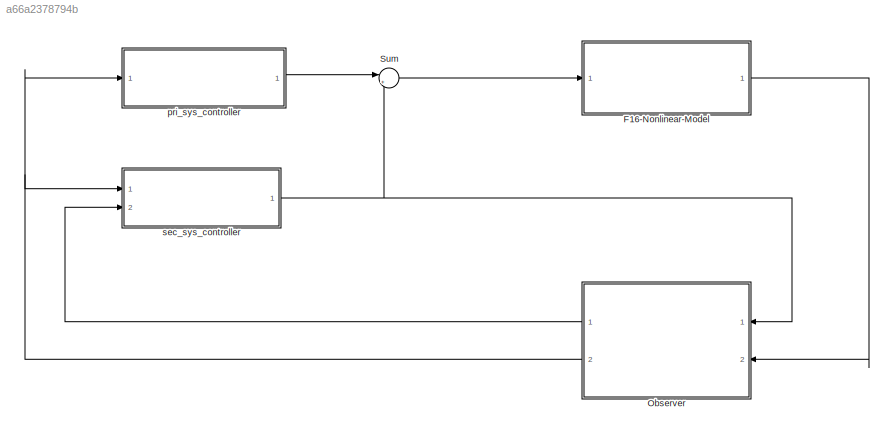
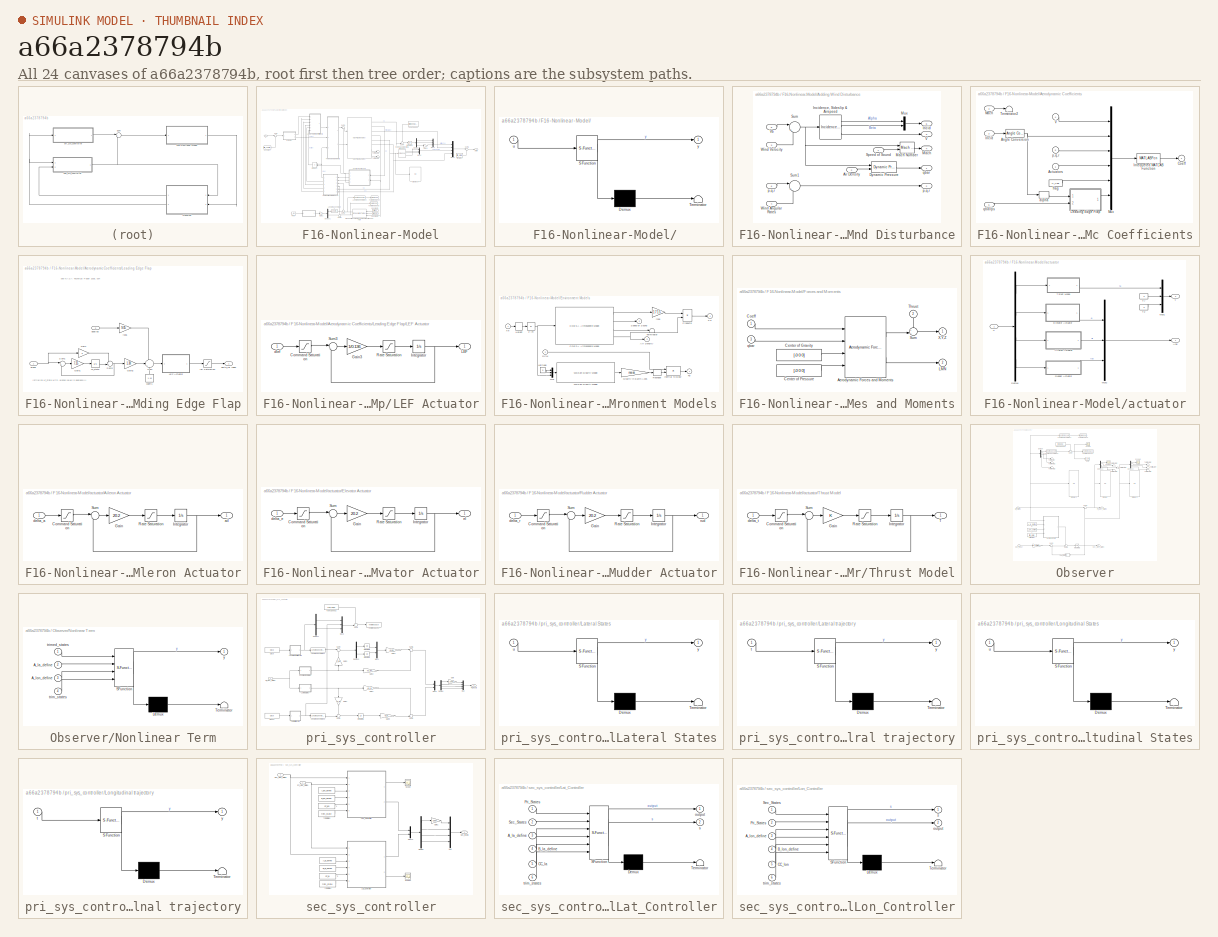
[diagram: thumbnail index - all 24 canvases of the model, root first then tree order]
MODEL slx_a66a2378794b
KIND model
CONFIG AbsTol = auto
CONFIG EnableMultiTasking = off
CONFIG FixedStep = 0.01
CONFIG MaxStep = auto
CONFIG MinStep = auto
CONFIG RelTol = 1e-3
CONFIG SampleTimeConstraint = Unconstrained
CONFIG Solver = VariableStepAuto
CONFIG SolverName = VariableStepAuto
CONFIG StartTime = 0.0
CONFIG StopTime = 200
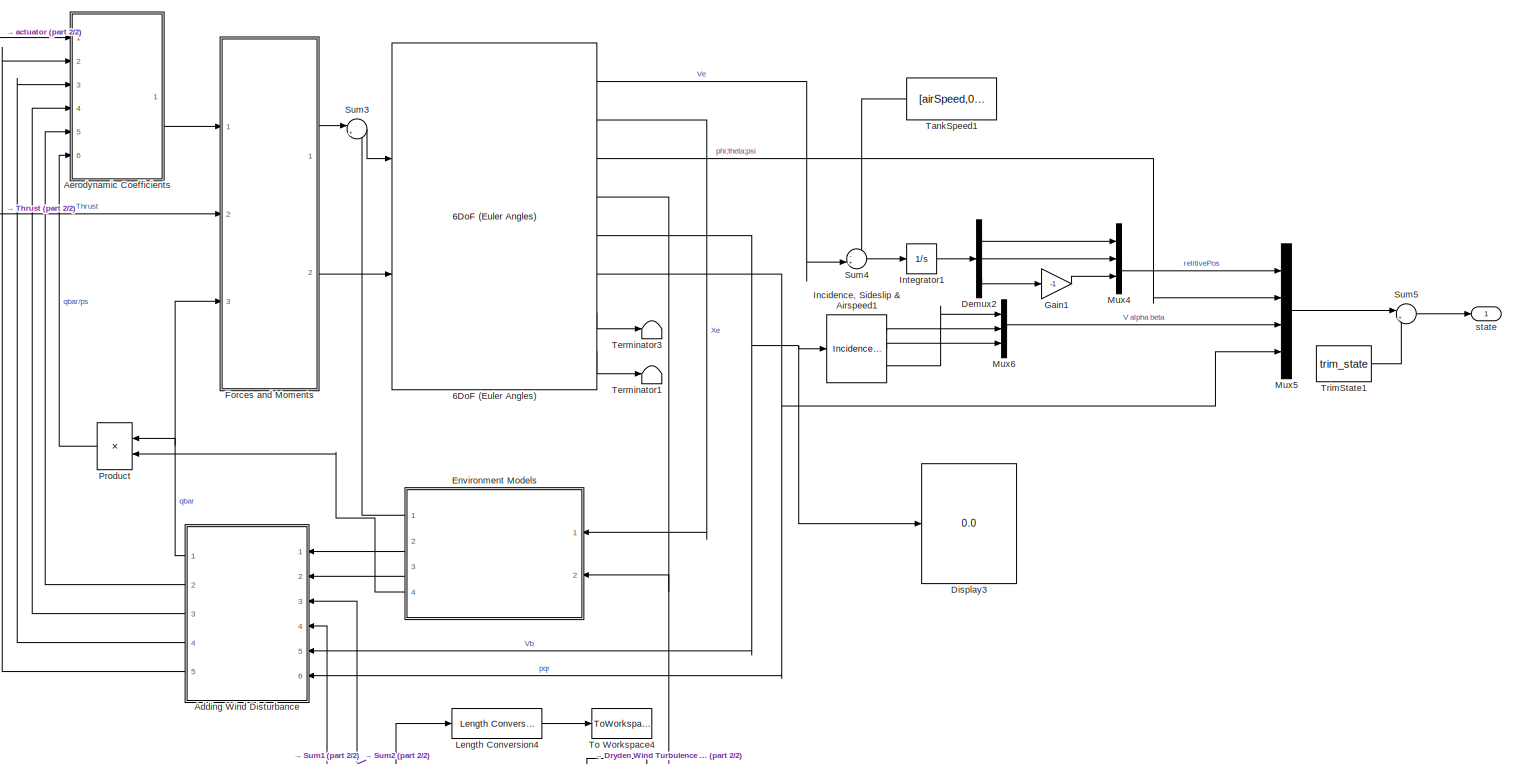
[diagram: F16-Nonlinear-Model - part 1/2, most of the canvas]
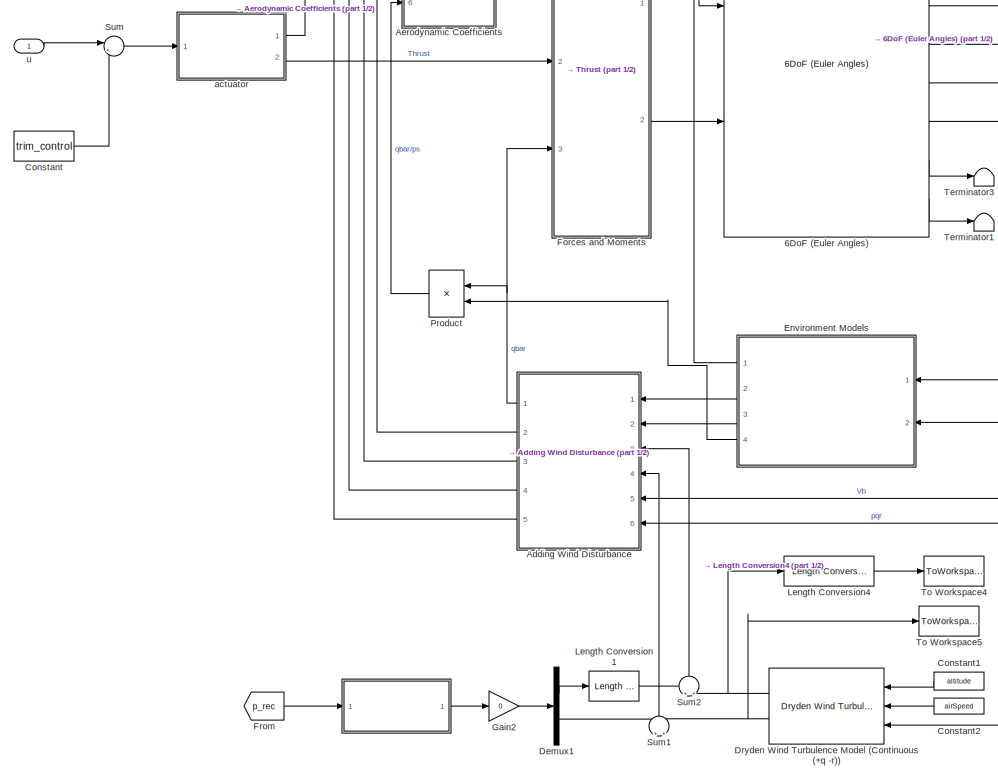
[diagram: F16-Nonlinear-Model - part 2/2, left side, full height]
BLOCK [SubSystem] F16-Nonlinear-Model
  Ports = [1, 1]
  RequestExecContextInheritance = off
  Variant = off
BLOCK [SubSystem] F16-Nonlinear-Model/ 
  ErrorFcn = Stateflow.Translate.translate
  PermitHierarchicalResolution = ExplicitOnly
  Ports = [1, 1]
  RequestExecContextInheritance = off
  SFBlockType = MATLAB Function
  TreatAsAtomicUnit = on
  Variant = off
BLOCK [Demux] F16-Nonlinear-Model/ / Demux 
  Outputs = 1
  Ports = [1, 1]
BLOCK [S-Function] F16-Nonlinear-Model/ / SFunction 
  EnableBusSupport = on
  FunctionName = sf_sfun
  PortCounts = [1 2]
  Ports = [1, 2]
  SFcnIsStateOwnerBlock = off
  SFunctionDeploymentMode = off
  Tag = Stateflow S-Function ADC_Controller_Trajectory_Tracking_Turb 3
BLOCK [Terminator] F16-Nonlinear-Model/ / Terminator 
BLOCK [Inport] F16-Nonlinear-Model/ /u
  IconDisplay = Port number
BLOCK [Outport] F16-Nonlinear-Model/ /y
  IconDisplay = Port number
BLOCK [Reference] F16-Nonlinear-Model/6DoF (Euler Angles)  REF=aerolibobsolete/6DoF (Euler Angles)
  Ports = [2, 8]
  SourceBlock = aerolibobsolete/6DoF (Euler Angles)
  SourceProductBaseCode = AE
  SourceProductName = Aerospace Blockset
  SourceType = 6DoF EoM (Body Axis)
BLOCK [SubSystem] F16-Nonlinear-Model/Adding Wind Disturbance
  Ports = [6, 5]
  RequestExecContextInheritance = off
  Variant = off
BLOCK [Inport] F16-Nonlinear-Model/Adding Wind Disturbance/Air Density
  IconDisplay = Port number
  Port = 2
BLOCK [Reference] F16-Nonlinear-Model/Adding Wind Disturbance/Dynamic Pressure  REF=aerolibasang/Dynamic Pressure
  Ports = [2, 1]
  SourceBlock = aerolibasang/Dynamic Pressure
  SourceProductBaseCode = AE
  SourceProductName = Aerospace Blockset
  SourceType = Dynamic Pressure
BLOCK [Outport] F16-Nonlinear-Model/Adding Wind Disturbance/Incid
  IconDisplay = Port number
  Port = 5
BLOCK [Reference] F16-Nonlinear-Model/Adding Wind Disturbance/Incidence, Sideslip & Airspeed  REF=aerolibasang/Incidence, Sideslip,
& Airspeed
  Ports = [1, 3]
  SourceBlock = aerolibasang/Incidence, Sideslip,\n& Airspeed
  SourceProductBaseCode = AE
  SourceProductName = Aerospace Blockset
  SourceType = Incidence,Sideslip,&Airspeed
BLOCK [Outport] F16-Nonlinear-Model/Adding Wind Disturbance/Mach
  IconDisplay = Port number
  Port = 4
BLOCK [Reference] F16-Nonlinear-Model/Adding Wind Disturbance/Mach Number  REF=aerolibasang/Mach Number
  Ports = [2, 1]
  SourceBlock = aerolibasang/Mach Number
  SourceProductBaseCode = AE
  SourceProductName = Aerospace Blockset
  SourceType = Mach Number
BLOCK [Mux] F16-Nonlinear-Model/Adding Wind Disturbance/Mux
  DisplayOption = bar
  Inputs = 2
  Ports = [2, 1]
BLOCK [Inport] F16-Nonlinear-Model/Adding Wind Disturbance/Speed of Sound
  IconDisplay = Port number
BLOCK [Sum] F16-Nonlinear-Model/Adding Wind Disturbance/Sum
  IconShape = round
  Inputs = |+-
  Ports = [2, 1]
BLOCK [Sum] F16-Nonlinear-Model/Adding Wind Disturbance/Sum1
  IconShape = round
  Inputs = |++
  Ports = [2, 1]
BLOCK [Outport] F16-Nonlinear-Model/Adding Wind Disturbance/V
  IconDisplay = Port number
  Port = 3
BLOCK [Inport] F16-Nonlinear-Model/Adding Wind Disturbance/Vb
  IconDisplay = Port number
  Port = 5
  PortDimensions = 3
BLOCK [Inport] F16-Nonlinear-Model/Adding Wind Disturbance/Wind Angular Rates
  IconDisplay = Port number
  Port = 4
  PortDimensions = 3
BLOCK [Inport] F16-Nonlinear-Model/Adding Wind Disturbance/Wind Velocity
  IconDisplay = Port number
  Port = 3
  PortDimensions = 3
BLOCK [Inport] F16-Nonlinear-Model/Adding Wind Disturbance/p,q,r
  IconDisplay = Port number
  Port = 6
  PortDimensions = 3
BLOCK [Outport] F16-Nonlinear-Model/Adding Wind Disturbance/p,q,r 
  IconDisplay = Port number
  Port = 2
BLOCK [Outport] F16-Nonlinear-Model/Adding Wind Disturbance/qbar
  IconDisplay = Port number
  InitialOutput = 0
BLOCK [SubSystem] F16-Nonlinear-Model/Aerodynamic Coefficients
  Ports = [6, 1]
  RequestExecContextInheritance = off
  Variant = off
BLOCK [Inport] F16-Nonlinear-Model/Aerodynamic Coefficients/Actuators
  IconDisplay = Port number
BLOCK [Reference] F16-Nonlinear-Model/Aerodynamic Coefficients/Angle Conversion  REF=aerolibconvert2/Angle Conversion
  Ports = [1, 1]
  SourceBlock = aerolibconvert2/Angle Conversion
  SourceProductBaseCode = AE
  SourceProductName = Aerospace Blockset
  SourceType = Angle Conversion
BLOCK [Outport] F16-Nonlinear-Model/Aerodynamic Coefficients/Coeff
  IconDisplay = Port number
  InitialOutput = 0
BLOCK [Inport] F16-Nonlinear-Model/Aerodynamic Coefficients/Incid
  IconDisplay = Port number
  Port = 2
BLOCK [MATLABFcn] F16-Nonlinear-Model/Aerodynamic Coefficients/Interpreted MATLAB Function
  MATLABFcn = F16Coef1
  OutputDimensions = 6
  Ports = [1, 1]
BLOCK [SubSystem] F16-Nonlinear-Model/Aerodynamic Coefficients/Leading Edge Flap
  Ports = [2, 1]
  RequestExecContextInheritance = off
  Variant = off
BLOCK [Gain] F16-Nonlinear-Model/Aerodynamic Coefficients/Leading Edge Flap/Gain
  Gain = 2
BLOCK [Gain] F16-Nonlinear-Model/Aerodynamic Coefficients/Leading Edge Flap/Gain1
  Gain = 7.25
BLOCK [Gain] F16-Nonlinear-Model/Aerodynamic Coefficients/Leading Edge Flap/Gain2
  Gain = 1.38
BLOCK [SubSystem] F16-Nonlinear-Model/Aerodynamic Coefficients/Leading Edge Flap/LEF Actuator
  Ports = [1, 1]
  RequestExecContextInheritance = off
  Variant = off
BLOCK [Saturate] F16-Nonlinear-Model/Aerodynamic Coefficients/Leading Edge Flap/LEF Actuator/Command Saturation
  InputPortMap = u0
  LowerLimit = 0
  Ports = [1, 1]
  UpperLimit = 25
BLOCK [Gain] F16-Nonlinear-Model/Aerodynamic Coefficients/Leading Edge Flap/LEF Actuator/Gain3
  Gain = 1/0.136
BLOCK [Integrator] F16-Nonlinear-Model/Aerodynamic Coefficients/Leading Edge Flap/LEF Actuator/Integrator 
  InitialCondition = dLEF
  LowerSaturationLimit = -21.5
  Ports = [1, 1]
  UpperSaturationLimit = 21.5
BLOCK [Outport] F16-Nonlinear-Model/Aerodynamic Coefficients/Leading Edge Flap/LEF Actuator/LEF
  IconDisplay = Port number
BLOCK [Saturate] F16-Nonlinear-Model/Aerodynamic Coefficients/Leading Edge Flap/LEF Actuator/Rate Saturation
  InputPortMap = u0
  LowerLimit = -25
  Ports = [1, 1]
  UpperLimit = 25
BLOCK [Sum] F16-Nonlinear-Model/Aerodynamic Coefficients/Leading Edge Flap/LEF Actuator/Sum3
  IconShape = round
  Inputs = |+-
  Ports = [2, 1]
BLOCK [Inport] F16-Nonlinear-Model/Aerodynamic Coefficients/Leading Edge Flap/LEF Actuator/dlef
  IconDisplay = Port number
BLOCK [Integrator] F16-Nonlinear-Model/Aerodynamic Coefficients/Leading Edge Flap/LF_state
  InitialCondition = -alpha0
  Ports = [1, 1]
BLOCK [Sum] F16-Nonlinear-Model/Aerodynamic Coefficients/Leading Edge Flap/Sum
  IconShape = round
  Inputs = -|+|+
  Ports = [3, 1]
BLOCK [Sum] F16-Nonlinear-Model/Aerodynamic Coefficients/Leading Edge Flap/Sum1
  IconShape = round
  Inputs = |+-
  Ports = [2, 1]
BLOCK [Sum] F16-Nonlinear-Model/Aerodynamic Coefficients/Leading Edge Flap/Sum2
  IconShape = round
  Inputs = ++|
  Ports = [2, 1]
BLOCK [Inport] F16-Nonlinear-Model/Aerodynamic Coefficients/Leading Edge Flap/alpha
  IconDisplay = Port number
BLOCK [Constant] F16-Nonlinear-Model/Aerodynamic Coefficients/Leading Edge Flap/coeff1
  Value = 1.45
BLOCK [Outport] F16-Nonlinear-Model/Aerodynamic Coefficients/Leading Edge Flap/delta_lef (deg)
  IconDisplay = Port number
BLOCK [Saturate] F16-Nonlinear-Model/Aerodynamic Coefficients/Leading Edge Flap/lef Saturation
  InputPortMap = u0
  LowerLimit = 0
  Ports = [1, 1]
  UpperLimit = 25
BLOCK [Inport] F16-Nonlinear-Model/Aerodynamic Coefficients/Leading Edge Flap/qbar//ps
  IconDisplay = Port number
  Port = 2
BLOCK [Gain] F16-Nonlinear-Model/Aerodynamic Coefficients/Leading Edge Flap/r2d6
  Gain = 9.05
BLOCK [Inport] F16-Nonlinear-Model/Aerodynamic Coefficients/Mach
  IconDisplay = Port number
  Port = 3
BLOCK [Mux] F16-Nonlinear-Model/Aerodynamic Coefficients/Mux
  DisplayOption = bar
  Inputs = 6
  Ports = [6, 1]
BLOCK [Terminator] F16-Nonlinear-Model/Aerodynamic Coefficients/Terminator2
BLOCK [Inport] F16-Nonlinear-Model/Aerodynamic Coefficients/V
  IconDisplay = Port number
  Port = 4
BLOCK [Selector] F16-Nonlinear-Model/Aerodynamic Coefficients/alpha
  IndexOptions = Index vector (dialog)
  Indices = 1
  InputPortWidth = 2
  OutputSizes = 1
  Ports = [1, 1]
BLOCK [Constant] F16-Nonlinear-Model/Aerodynamic Coefficients/flag
  Value = fi_flag
BLOCK [Inport] F16-Nonlinear-Model/Aerodynamic Coefficients/p,q,r
  IconDisplay = Port number
  Port = 5
BLOCK [Inport] F16-Nonlinear-Model/Aerodynamic Coefficients/qbar//ps
  IconDisplay = Port number
  Port = 6
BLOCK [Constant] F16-Nonlinear-Model/Constant
  Value = trim_control
BLOCK [Constant] F16-Nonlinear-Model/Constant1
  Value = altitude
BLOCK [Constant] F16-Nonlinear-Model/Constant2
  Value = airSpeed
BLOCK [Demux] F16-Nonlinear-Model/Demux1
  DisplayOption = bar
  Outputs = 2
  Ports = [1, 2]
BLOCK [Demux] F16-Nonlinear-Model/Demux2
  DisplayOption = bar
  Outputs = 3
  Ports = [1, 3]
BLOCK [Display] F16-Nonlinear-Model/Display3
  Decimation = 1
  Ports = [1]
BLOCK [Reference] F16-Nonlinear-Model/Dryden Wind Turbulence Model (Continuous (+q -r))  REF=aerolibwind2/Dryden Wind Turbulence Model 
(Continuous (+q -r))
  Ports = [3, 2]
  SourceBlock = aerolibwind2/Dryden Wind Turbulence Model \n(Continuous (+q -r))
  SourceProductBaseCode = AE
  SourceProductName = Aerospace Blockset
  SourceType = Wind Turbulence Model
BLOCK [SubSystem] F16-Nonlinear-Model/Environment Models
  Ports = [2, 4]
  RequestExecContextInheritance = off
  Variant = off
BLOCK [Outport] F16-Nonlinear-Model/Environment Models/Air Density
  IconDisplay = Port number
  InitialOutput = 0
  Port = 3
BLOCK [Reference] F16-Nonlinear-Model/Environment Models/COESA Atmosphere Model  REF=aerolibatmos2/COESA Atmosphere Model
  Ports = [1, 4]
  SourceBlock = aerolibatmos2/COESA Atmosphere Model
  SourceProductBaseCode = AE
  SourceProductName = Aerospace Blockset
  SourceType = Atmosphere Model
BLOCK [Inport] F16-Nonlinear-Model/Environment Models/DCM
  IconDisplay = Port number
  Port = 2
BLOCK [Outport] F16-Nonlinear-Model/Environment Models/Fg
  IconDisplay = Port number
  InitialOutput = 0
BLOCK [Gain] F16-Nonlinear-Model/Environment Models/Gravity in Earth Axes
  Gain = mass
BLOCK [Selector] F16-Nonlinear-Model/Environment Models/Height
  IndexOptions = Index vector (dialog)
  Indices = [3]
  InputPortWidth = 3
  OutputSizes = 1
  Ports = [1, 1]
BLOCK [Product] F16-Nonlinear-Model/Environment Models/Inertial to Body
  Multiplication = Matrix(*)
  Ports = [2, 1]
  RndMeth = Floor
BLOCK [Constant] F16-Nonlinear-Model/Environment Models/Latitude
  Value = 0
BLOCK [Mux] F16-Nonlinear-Model/Environment Models/Mux
  DisplayOption = bar
  Inputs = 3
  Ports = [3, 1]
BLOCK [Outport] F16-Nonlinear-Model/Environment Models/PS
  IconDisplay = Port number
  Port = 4
BLOCK [Product] F16-Nonlinear-Model/Environment Models/Product6
  Inputs = **
  Ports = [2, 1]
  RndMeth = Floor
BLOCK [Reshape] F16-Nonlinear-Model/Environment Models/Reshape
  Ports = [1, 1]
BLOCK [Outport] F16-Nonlinear-Model/Environment Models/Speed of Sound
  IconDisplay = Port number
  InitialOutput = 0
  Port = 2
BLOCK [Terminator] F16-Nonlinear-Model/Environment Models/Terminator
BLOCK [Reference] F16-Nonlinear-Model/Environment Models/WGS84 Gravity Model   REF=aerolibobsolete/WGS84 Gravity Model 
  Ports = [1, 1]
  SourceBlock = aerolibobsolete/WGS84 Gravity Model
  SourceProductBaseCode = AE
  SourceProductName = Aerospace Blockset
  SourceType = WGS84 Gravity Model 3D
BLOCK [Inport] F16-Nonlinear-Model/Environment Models/Xe
  IconDisplay = Port number
  PortDimensions = 3
BLOCK [Gain] F16-Nonlinear-Model/Environment Models/r2d5
  Gain = 1715
BLOCK [Abs] F16-Nonlinear-Model/Environment Models/z-->h
BLOCK [SubSystem] F16-Nonlinear-Model/Forces and Moments
  Ports = [3, 2]
  RequestExecContextInheritance = off
  Variant = off
BLOCK [Reference] F16-Nonlinear-Model/Forces and Moments/Aerodynamic Forces and Moments   REF=aerolibadyn/Aerodynamic
Forces and Moments 
  Ports = [4, 2]
  SourceBlock = aerolibadyn/Aerodynamic\nForces and Moments
  SourceProductBaseCode = AE
  SourceProductName = Aerospace Blockset
  SourceType = Aerodynamic Forces and Moments
BLOCK [Constant] F16-Nonlinear-Model/Forces and Moments/Center of Gravity
  Value = [-0 0 0]
BLOCK [Constant] F16-Nonlinear-Model/Forces and Moments/Center of Pressure
  Value = [-0 0 0]
BLOCK [Inport] F16-Nonlinear-Model/Forces and Moments/Coeff
  IconDisplay = Port number
BLOCK [Outport] F16-Nonlinear-Model/Forces and Moments/LMN
  IconDisplay = Port number
  InitialOutput = 0
  Port = 2
BLOCK [Sum] F16-Nonlinear-Model/Forces and Moments/Sum
  IconShape = round
  Inputs = ++|
  Ports = [2, 1]
BLOCK [Inport] F16-Nonlinear-Model/Forces and Moments/Thrust
  IconDisplay = Port number
  Port = 2
BLOCK [Outport] F16-Nonlinear-Model/Forces and Moments/X,Y,Z
  IconDisplay = Port number
  InitialOutput = 0
BLOCK [Inport] F16-Nonlinear-Model/Forces and Moments/qbar
  IconDisplay = Port number
  Port = 3
BLOCK [From] F16-Nonlinear-Model/From
  GotoTag = p_rec
  TagVisibility = global
BLOCK [Gain] F16-Nonlinear-Model/Gain1
  Gain = -1
  OutDataTypeStr = Inherit: Inherit via internal rule
  ParamDataTypeStr = Inherit: Inherit via internal rule
  SaturateOnIntegerOverflow = off
BLOCK [Gain] F16-Nonlinear-Model/Gain2
  Gain = 0
  OutDataTypeStr = Inherit: Inherit via internal rule
  ParamDataTypeStr = Inherit: Inherit via internal rule
  SaturateOnIntegerOverflow = off
BLOCK [Reference] F16-Nonlinear-Model/Incidence, Sideslip & Airspeed1  REF=aerolibasang/Incidence, Sideslip,
& Airspeed
  Ports = [1, 3]
  SourceBlock = aerolibasang/Incidence, Sideslip,\n& Airspeed
  SourceProductBaseCode = AE
  SourceProductName = Aerospace Blockset
  SourceType = Incidence,Sideslip,&Airspeed
BLOCK [Integrator] F16-Nonlinear-Model/Integrator1
  Ports = [1, 1]
BLOCK [Reference] F16-Nonlinear-Model/Length Conversion1  REF=aerolibconvert2/Length Conversion
  Ports = [1, 1]
  SourceBlock = aerolibconvert2/Length Conversion
  SourceProductBaseCode = AE
  SourceProductName = Aerospace Blockset
  SourceType = Length Conversion
BLOCK [Reference] F16-Nonlinear-Model/Length Conversion4  REF=aerolibconvert2/Length Conversion
  Ports = [1, 1]
  SourceBlock = aerolibconvert2/Length Conversion
  SourceProductBaseCode = AE
  SourceProductName = Aerospace Blockset
  SourceType = Length Conversion
BLOCK [Mux] F16-Nonlinear-Model/Mux4
  DisplayOption = bar
  Inputs = 3
  Ports = [3, 1]
BLOCK [Mux] F16-Nonlinear-Model/Mux5
  DisplayOption = bar
  Ports = [4, 1]
BLOCK [Mux] F16-Nonlinear-Model/Mux6
  DisplayOption = bar
  Inputs = 3
  Ports = [3, 1]
BLOCK [Product] F16-Nonlinear-Model/Product
  Inputs = */
  Ports = [2, 1]
  RndMeth = Floor
BLOCK [Sum] F16-Nonlinear-Model/Sum
  IconShape = round
  InputSameDT = off
  Inputs = |++
  OutDataTypeStr = Inherit: Inherit via internal rule
  Ports = [2, 1]
  SaturateOnIntegerOverflow = off
BLOCK [Sum] F16-Nonlinear-Model/Sum1
  IconShape = round
  InputSameDT = off
  Inputs = +|+
  OutDataTypeStr = Inherit: Inherit via internal rule
  Ports = [2, 1]
  SaturateOnIntegerOverflow = off
BLOCK [Sum] F16-Nonlinear-Model/Sum2
  IconShape = round
  InputSameDT = off
  Inputs = +|+
  OutDataTypeStr = Inherit: Inherit via internal rule
  Ports = [2, 1]
  SaturateOnIntegerOverflow = off
BLOCK [Sum] F16-Nonlinear-Model/Sum3
  IconShape = round
  Inputs = |++
  Ports = [2, 1]
BLOCK [Sum] F16-Nonlinear-Model/Sum4
  IconShape = round
  InputSameDT = off
  Inputs = -+|
  OutDataTypeStr = Inherit: Inherit via internal rule
  Ports = [2, 1]
  SaturateOnIntegerOverflow = off
BLOCK [Sum] F16-Nonlinear-Model/Sum5
  IconShape = round
  InputSameDT = off
  Inputs = |+-
  OutDataTypeStr = Inherit: Inherit via internal rule
  Ports = [2, 1]
  SaturateOnIntegerOverflow = off
BLOCK [Constant] F16-Nonlinear-Model/TankSpeed1
  Value = [airSpeed,0,0]
BLOCK [Terminator] F16-Nonlinear-Model/Terminator1
BLOCK [Terminator] F16-Nonlinear-Model/Terminator3
BLOCK [ToWorkspace] F16-Nonlinear-Model/To Workspace4
  FixptAsFi = on
  MaxDataPoints = inf
  Ports = [1]
  SampleTime = -1
  Save2DSignal = 3-D array (concatenate along third dimension)
  SaveFormat = Structure With Time
  VariableName = V_wind
BLOCK [ToWorkspace] F16-Nonlinear-Model/To Workspace5
  FixptAsFi = on
  MaxDataPoints = inf
  Ports = [1]
  SampleTime = -1
  Save2DSignal = 3-D array (concatenate along third dimension)
  SaveFormat = Structure With Time
  VariableName = W_wind
BLOCK [Constant] F16-Nonlinear-Model/TrimState1
  Value = trim_state
BLOCK [SubSystem] F16-Nonlinear-Model/actuator
  Ports = [1, 2]
  RequestExecContextInheritance = off
  Variant = off
BLOCK [SubSystem] F16-Nonlinear-Model/actuator/Aileron Actuator
  Ports = [1, 1]
  RequestExecContextInheritance = off
  Variant = off
BLOCK [Saturate] F16-Nonlinear-Model/actuator/Aileron Actuator/Command Saturation
  InputPortMap = u0
  LowerLimit = -21.5
  Ports = [1, 1]
  UpperLimit = 21.5
BLOCK [Gain] F16-Nonlinear-Model/actuator/Aileron Actuator/Gain
  Gain = 20.2
BLOCK [Integrator] F16-Nonlinear-Model/actuator/Aileron Actuator/Integrator 
  InitialCondition = trim_ail
  LowerSaturationLimit = -21.5
  Ports = [1, 1]
  UpperSaturationLimit = 21.5
BLOCK [Saturate] F16-Nonlinear-Model/actuator/Aileron Actuator/Rate Saturation
  InputPortMap = u0
  LowerLimit = -80
  Ports = [1, 1]
  UpperLimit = 80
BLOCK [Sum] F16-Nonlinear-Model/actuator/Aileron Actuator/Sum
  IconShape = round
  Inputs = |+-
  Ports = [2, 1]
BLOCK [Outport] F16-Nonlinear-Model/actuator/Aileron Actuator/ail
  IconDisplay = Port number
BLOCK [Inport] F16-Nonlinear-Model/actuator/Aileron Actuator/delta_a
  IconDisplay = Port number
BLOCK [Outport] F16-Nonlinear-Model/actuator/Ang
  IconDisplay = Port number
BLOCK [Demux] F16-Nonlinear-Model/actuator/Demux
  DisplayOption = bar
  Ports = [1, 4]
BLOCK [SubSystem] F16-Nonlinear-Model/actuator/Elevator Actuator
  Ports = [1, 1]
  RequestExecContextInheritance = off
  Variant = off
BLOCK [Saturate] F16-Nonlinear-Model/actuator/Elevator Actuator/Command Saturation
  InputPortMap = u0
  LowerLimit = -25
  Ports = [1, 1]
  UpperLimit = 25
BLOCK [Gain] F16-Nonlinear-Model/actuator/Elevator Actuator/Gain
  Gain = 20.2
BLOCK [Integrator] F16-Nonlinear-Model/actuator/Elevator Actuator/Integrator 
  InitialCondition = trim_ele
  LowerSaturationLimit = -25
  Ports = [1, 1]
  UpperSaturationLimit = 25
BLOCK [Saturate] F16-Nonlinear-Model/actuator/Elevator Actuator/Rate Saturation
  InputPortMap = u0
  LowerLimit = -60
  Ports = [1, 1]
  UpperLimit = 60
BLOCK [Sum] F16-Nonlinear-Model/actuator/Elevator Actuator/Sum
  IconShape = round
  Inputs = |+-
  Ports = [2, 1]
BLOCK [Inport] F16-Nonlinear-Model/actuator/Elevator Actuator/delta_e
  IconDisplay = Port number
BLOCK [Outport] F16-Nonlinear-Model/actuator/Elevator Actuator/el
  IconDisplay = Port number
BLOCK [Mux] F16-Nonlinear-Model/actuator/Mux1
  DisplayOption = bar
  Inputs = 3
  Ports = [3, 1]
BLOCK [Mux] F16-Nonlinear-Model/actuator/Mux2
  DisplayOption = bar
  Inputs = 3
  Ports = [3, 1]
BLOCK [SubSystem] F16-Nonlinear-Model/actuator/Rudder Actuator
  Ports = [1, 1]
  RequestExecContextInheritance = off
  Variant = off
BLOCK [Saturate] F16-Nonlinear-Model/actuator/Rudder Actuator/Command Saturation
  InputPortMap = u0
  LowerLimit = -30
  Ports = [1, 1]
  UpperLimit = 30
BLOCK [Gain] F16-Nonlinear-Model/actuator/Rudder Actuator/Gain
  Gain = 20.2
BLOCK [Integrator] F16-Nonlinear-Model/actuator/Rudder Actuator/Integrator 
  InitialCondition = trim_rud
  LowerSaturationLimit = -30
  Ports = [1, 1]
  UpperSaturationLimit = 30
BLOCK [Saturate] F16-Nonlinear-Model/actuator/Rudder Actuator/Rate Saturation
  InputPortMap = u0
  LowerLimit = -120
  Ports = [1, 1]
  UpperLimit = 120
BLOCK [Sum] F16-Nonlinear-Model/actuator/Rudder Actuator/Sum
  IconShape = round
  Inputs = |+-
  Ports = [2, 1]
BLOCK [Inport] F16-Nonlinear-Model/actuator/Rudder Actuator/delta_r
  IconDisplay = Port number
BLOCK [Outport] F16-Nonlinear-Model/actuator/Rudder Actuator/rud
  IconDisplay = Port number
BLOCK [Outport] F16-Nonlinear-Model/actuator/T
  IconDisplay = Port number
  Port = 2
BLOCK [SubSystem] F16-Nonlinear-Model/actuator/Thrust Model
  Ports = [1, 1]
  RequestExecContextInheritance = off
  Variant = off
BLOCK [Saturate] F16-Nonlinear-Model/actuator/Thrust Model/Command Saturation
  InputPortMap = u0
  LowerLimit = 1000
  Ports = [1, 1]
  UpperLimit = 19000
BLOCK [Gain] F16-Nonlinear-Model/actuator/Thrust Model/Gain
BLOCK [Integrator] F16-Nonlinear-Model/actuator/Thrust Model/Integrator 
  InitialCondition = trim_thrust
  LowerSaturationLimit = -30
  Ports = [1, 1]
  UpperSaturationLimit = 30
BLOCK [Saturate] F16-Nonlinear-Model/actuator/Thrust Model/Rate Saturation
  InputPortMap = u0
  LowerLimit = -10000
  Ports = [1, 1]
  UpperLimit = 10000
BLOCK [Sum] F16-Nonlinear-Model/actuator/Thrust Model/Sum
  IconShape = round
  Inputs = |+-
  Ports = [2, 1]
BLOCK [Outport] F16-Nonlinear-Model/actuator/Thrust Model/T
  IconDisplay = Port number
BLOCK [Inport] F16-Nonlinear-Model/actuator/Thrust Model/delta_t
  IconDisplay = Port number
BLOCK [Constant] F16-Nonlinear-Model/actuator/Ty
  Value = 0
BLOCK [Constant] F16-Nonlinear-Model/actuator/Tz
  Value = 0
BLOCK [Inport] F16-Nonlinear-Model/actuator/u
  IconDisplay = Port number
BLOCK [Outport] F16-Nonlinear-Model/state
  IconDisplay = Port number
BLOCK [Inport] F16-Nonlinear-Model/u
  IconDisplay = Port number
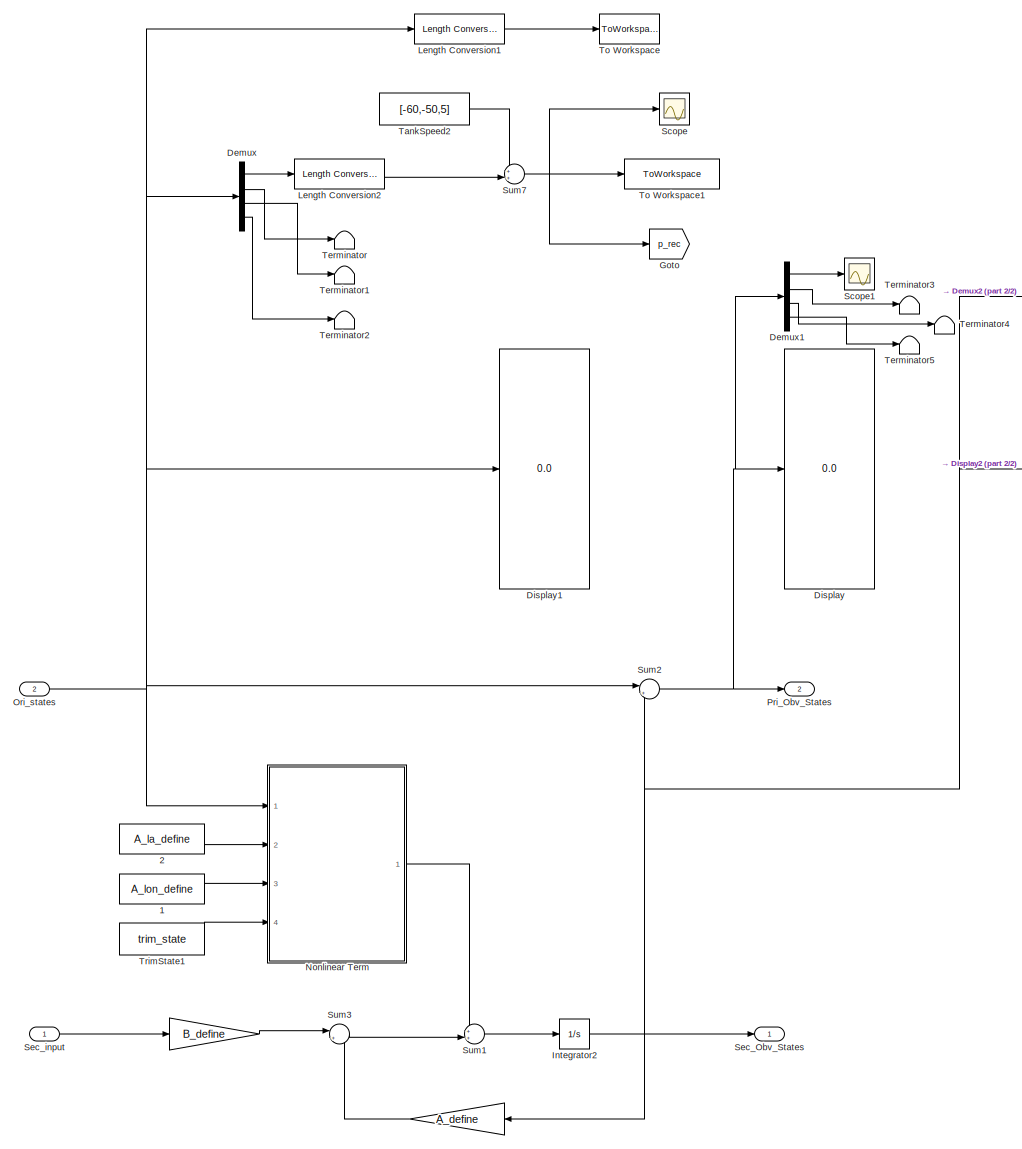
[diagram: Observer - part 1/2, most of the canvas]
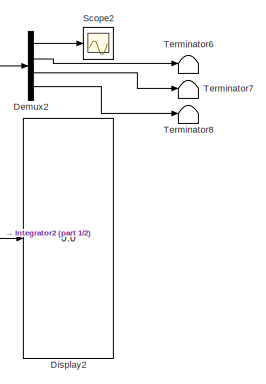
[diagram: Observer - part 2/2, middle right region]
BLOCK [SubSystem] Observer
  Ports = [2, 2]
  RequestExecContextInheritance = off
  Variant = off
BLOCK [Gain] Observer/ 
  Gain = A_define
  Multiplication = Matrix(K*u) (u vector)
  OutDataTypeStr = Inherit: Inherit via internal rule
  ParamDataTypeStr = Inherit: Inherit via internal rule
  SaturateOnIntegerOverflow = off
BLOCK [Gain] Observer/  
  Gain = B_define
  Multiplication = Matrix(K*u) (u vector)
  OutDataTypeStr = Inherit: Inherit via internal rule
  ParamDataTypeStr = Inherit: Inherit via internal rule
  SaturateOnIntegerOverflow = off
BLOCK [Constant] Observer/ 1
  Value = A_lon_define
BLOCK [Constant] Observer/ 2
  Value = A_la_define
BLOCK [Demux] Observer/Demux
  DisplayOption = bar
  Ports = [1, 4]
BLOCK [Demux] Observer/Demux1
  DisplayOption = bar
  Ports = [1, 4]
BLOCK [Demux] Observer/Demux2
  DisplayOption = bar
  Ports = [1, 4]
BLOCK [Display] Observer/Display
  Decimation = 1
  Ports = [1]
BLOCK [Display] Observer/Display1
  Decimation = 1
  Ports = [1]
BLOCK [Display] Observer/Display2
  Decimation = 1
  Ports = [1]
BLOCK [Goto] Observer/Goto
  GotoTag = p_rec
  TagVisibility = global
BLOCK [Integrator] Observer/Integrator2
  InitialCondition = zeros(12,1)
  Ports = [1, 1]
BLOCK [Reference] Observer/Length Conversion1  REF=aerolibconvert2/Length Conversion
  Ports = [1, 1]
  SourceBlock = aerolibconvert2/Length Conversion
  SourceProductBaseCode = AE
  SourceProductName = Aerospace Blockset
  SourceType = Length Conversion
BLOCK [Reference] Observer/Length Conversion2  REF=aerolibconvert2/Length Conversion
  Ports = [1, 1]
  SourceBlock = aerolibconvert2/Length Conversion
  SourceProductBaseCode = AE
  SourceProductName = Aerospace Blockset
  SourceType = Length Conversion
BLOCK [SubSystem] Observer/Nonlinear Term
  ErrorFcn = Stateflow.Translate.translate
  PermitHierarchicalResolution = ExplicitOnly
  Ports = [4, 1]
  RequestExecContextInheritance = off
  SFBlockType = MATLAB Function
  TreatAsAtomicUnit = on
  Variant = off
BLOCK [Demux] Observer/Nonlinear Term/ Demux 
  Outputs = 1
  Ports = [1, 1]
BLOCK [S-Function] Observer/Nonlinear Term/ SFunction 
  EnableBusSupport = on
  FunctionName = sf_sfun
  PortCounts = [4 2]
  Ports = [4, 2]
  SFcnIsStateOwnerBlock = off
  SFunctionDeploymentMode = off
  Tag = Stateflow S-Function ADC_Controller_Trajectory_Tracking_Turb 9
BLOCK [Terminator] Observer/Nonlinear Term/ Terminator 
BLOCK [Inport] Observer/Nonlinear Term/A_la_define
  IconDisplay = Port number
  Port = 2
BLOCK [Inport] Observer/Nonlinear Term/A_lon_define
  IconDisplay = Port number
  Port = 3
BLOCK [Inport] Observer/Nonlinear Term/trim_states
  IconDisplay = Port number
  Port = 4
BLOCK [Inport] Observer/Nonlinear Term/trimed_states
  IconDisplay = Port number
BLOCK [Outport] Observer/Nonlinear Term/y
  IconDisplay = Port number
BLOCK [Inport] Observer/Ori_states
  IconDisplay = Port number
  Port = 2
BLOCK [Outport] Observer/Pri_Obv_States
  IconDisplay = Port number
  Port = 2
BLOCK [Scope] Observer/Scope
  NumInputPorts = 1
  Ports = [1]
  ScopeSpecificationString = Simulink.scopes.TimeScopeBlockCfg('CurrentConfiguration', extmgr.ConfigurationSet(extmgr.Configuration('Core','General UI',true),extmgr.Configuration('Core','Source UI',true),extmgr.Configuration('Sources','WiredSimulink',true,'DataLoggingVariableName','ScopeData1'),extmgr.Configuration('Visuals','Time Domain',true,'SerializedDisplays',{struct('MinYLimReal','-68.21868','MaxYLimReal','13.62324','YL...<+1420ch>
BLOCK [Scope] Observer/Scope1
  NumInputPorts = 1
  Ports = [1]
  ScopeSpecificationString = Simulink.scopes.TimeScopeBlockCfg('CurrentConfiguration', extmgr.ConfigurationSet(extmgr.Configuration('Core','General UI',true),extmgr.Configuration('Core','Source UI',true),extmgr.Configuration('Sources','WiredSimulink',true,'DataLoggingVariableName','ScopeData2'),extmgr.Configuration('Visuals','Time Domain',true,'SerializedDisplays',{struct('MinYLimReal','-22.62323','MaxYLimReal','185.49285','Y...<+1436ch>
BLOCK [Scope] Observer/Scope2
  NumInputPorts = 1
  Ports = [1]
  ScopeSpecificationString = Simulink.scopes.TimeScopeBlockCfg('CurrentConfiguration', extmgr.ConfigurationSet(extmgr.Configuration('Core','General UI',true),extmgr.Configuration('Core','Source UI',true),extmgr.Configuration('Sources','WiredSimulink',true,'DataLoggingSaveFormat','Array','DataLoggingDecimation','1','DataLoggingDecimateData',true),extmgr.Configuration('Visuals','Time Domain',true,'SerializedDisplays',{struct('M...<+1489ch>
BLOCK [Outport] Observer/Sec_Obv_States
  IconDisplay = Port number
BLOCK [Inport] Observer/Sec_input
  IconDisplay = Port number
BLOCK [Sum] Observer/Sum1
  IconShape = round
  InputSameDT = off
  Inputs = ++|
  OutDataTypeStr = Inherit: Inherit via internal rule
  Ports = [2, 1]
  SaturateOnIntegerOverflow = off
BLOCK [Sum] Observer/Sum2
  IconShape = round
  InputSameDT = off
  Inputs = |+-
  OutDataTypeStr = Inherit: Inherit via internal rule
  Ports = [2, 1]
  SaturateOnIntegerOverflow = off
BLOCK [Sum] Observer/Sum3
  IconShape = round
  InputSameDT = off
  Inputs = |++
  OutDataTypeStr = Inherit: Inherit via internal rule
  Ports = [2, 1]
  SaturateOnIntegerOverflow = off
BLOCK [Sum] Observer/Sum7
  IconShape = round
  InputSameDT = off
  Inputs = ++|
  OutDataTypeStr = Inherit: Inherit via internal rule
  Ports = [2, 1]
  SaturateOnIntegerOverflow = off
BLOCK [Constant] Observer/TankSpeed2
  Value = [-60,-50,5]
BLOCK [Terminator] Observer/Terminator
BLOCK [Terminator] Observer/Terminator1
BLOCK [Terminator] Observer/Terminator2
BLOCK [Terminator] Observer/Terminator3
BLOCK [Terminator] Observer/Terminator4
BLOCK [Terminator] Observer/Terminator5
BLOCK [Terminator] Observer/Terminator6
BLOCK [Terminator] Observer/Terminator7
BLOCK [Terminator] Observer/Terminator8
BLOCK [ToWorkspace] Observer/To Workspace
  FixptAsFi = on
  MaxDataPoints = inf
  Ports = [1]
  SampleTime = -1
  Save2DSignal = 3-D array (concatenate along third dimension)
  SaveFormat = Structure With Time
  VariableName = in_mass
BLOCK [ToWorkspace] Observer/To Workspace1
  FixptAsFi = on
  MaxDataPoints = inf
  Ports = [1]
  SampleTime = -1
  Save2DSignal = 3-D array (concatenate along third dimension)
  SaveFormat = Structure With Time
  VariableName = actual_trajectory
BLOCK [Constant] Observer/TrimState1
  Value = trim_state
BLOCK [Sum] Sum
  IconShape = round
  InputSameDT = off
  Inputs = |++
  OutDataTypeStr = Inherit: Inherit via internal rule
  Ports = [2, 1]
  SaturateOnIntegerOverflow = off
BLOCK [SubSystem] pri_sys_controller
  Ports = [1, 1]
  RequestExecContextInheritance = off
  Variant = off
BLOCK [Clock] pri_sys_controller/Clock
  Decimation = 50
  DisplayTime = on
BLOCK [Clock] pri_sys_controller/Clock1
  Decimation = 50
  DisplayTime = on
BLOCK [Demux] pri_sys_controller/Demux
  DisplayOption = bar
  Ports = [1, 4]
BLOCK [Demux] pri_sys_controller/Demux1
  DisplayOption = bar
  Outputs = 2
  Ports = [1, 2]
BLOCK [Demux] pri_sys_controller/Demux2
  DisplayOption = bar
  Outputs = 2
  Ports = [1, 2]
BLOCK [Gain] pri_sys_controller/Gain
  Gain = 1000
  OutDataTypeStr = Inherit: Inherit via internal rule
  ParamDataTypeStr = Inherit: Inherit via internal rule
  SaturateOnIntegerOverflow = off
BLOCK [Gain] pri_sys_controller/Gain1
  Gain = C_la
  Multiplication = Matrix(K*u) (u vector)
  OutDataTypeStr = Inherit: Inherit via internal rule
  ParamDataTypeStr = Inherit: Inherit via internal rule
  SaturateOnIntegerOverflow = off
BLOCK [Gain] pri_sys_controller/Gain2
  Gain = kp_lon
  Multiplication = Matrix(K*u) (u vector)
  OutDataTypeStr = Inherit: Inherit via internal rule
  ParamDataTypeStr = Inherit: Inherit via internal rule
  SaturateOnIntegerOverflow = off
BLOCK [Gain] pri_sys_controller/Gain3
  Gain = C_lon
  Multiplication = Matrix(K*u) (u vector)
  OutDataTypeStr = Inherit: Inherit via internal rule
  ParamDataTypeStr = Inherit: Inherit via internal rule
  SaturateOnIntegerOverflow = off
BLOCK [Gain] pri_sys_controller/Gain4
  Gain = Ki_lon
  Multiplication = Matrix(K*u) (u vector)
  OutDataTypeStr = Inherit: Inherit via internal rule
  ParamDataTypeStr = Inherit: Inherit via internal rule
  SaturateOnIntegerOverflow = off
BLOCK [Gain] pri_sys_controller/Gain7
  Gain = kp_la
  Multiplication = Matrix(K*u) (u vector)
  OutDataTypeStr = Inherit: Inherit via internal rule
  ParamDataTypeStr = Inherit: Inherit via internal rule
  SaturateOnIntegerOverflow = off
BLOCK [Gain] pri_sys_controller/Gain9
  Gain = Ki_la
  Multiplication = Matrix(K*u) (u vector)
  OutDataTypeStr = Inherit: Inherit via internal rule
  ParamDataTypeStr = Inherit: Inherit via internal rule
  SaturateOnIntegerOverflow = off
BLOCK [Integrator] pri_sys_controller/Integrator3
  Ports = [1, 1]
BLOCK [Integrator] pri_sys_controller/Integrator4
  Ports = [1, 1]
BLOCK [Integrator] pri_sys_controller/Integrator6
  Ports = [1, 1]
BLOCK [SubSystem] pri_sys_controller/Lateral States
  ErrorFcn = Stateflow.Translate.translate
  PermitHierarchicalResolution = ExplicitOnly
  Ports = [1, 1]
  RequestExecContextInheritance = off
  SFBlockType = MATLAB Function
  TreatAsAtomicUnit = on
  Variant = off
BLOCK [Demux] pri_sys_controller/Lateral States/ Demux 
  Outputs = 1
  Ports = [1, 1]
BLOCK [S-Function] pri_sys_controller/Lateral States/ SFunction 
  EnableBusSupport = on
  FunctionName = sf_sfun
  PortCounts = [1 2]
  Ports = [1, 2]
  SFcnIsStateOwnerBlock = off
  SFunctionDeploymentMode = off
  Tag = Stateflow S-Function ADC_Controller_Trajectory_Tracking_Turb 12
BLOCK [Terminator] pri_sys_controller/Lateral States/ Terminator 
BLOCK [Inport] pri_sys_controller/Lateral States/u
  IconDisplay = Port number
BLOCK [Outport] pri_sys_controller/Lateral States/y
  IconDisplay = Port number
BLOCK [SubSystem] pri_sys_controller/Lateral trajectory
  ErrorFcn = Stateflow.Translate.translate
  PermitHierarchicalResolution = ExplicitOnly
  Ports = [1, 1]
  RequestExecContextInheritance = off
  SFBlockType = MATLAB Function
  TreatAsAtomicUnit = on
  Variant = off
BLOCK [Demux] pri_sys_controller/Lateral trajectory/ Demux 
  Outputs = 1
  Ports = [1, 1]
BLOCK [S-Function] pri_sys_controller/Lateral trajectory/ SFunction 
  EnableBusSupport = on
  FunctionName = sf_sfun
  PortCounts = [1 2]
  Ports = [1, 2]
  SFcnIsStateOwnerBlock = off
  SFunctionDeploymentMode = off
  Tag = Stateflow S-Function ADC_Controller_Trajectory_Tracking_Turb 8
BLOCK [Terminator] pri_sys_controller/Lateral trajectory/ Terminator 
BLOCK [Inport] pri_sys_controller/Lateral trajectory/t
  IconDisplay = Port number
BLOCK [Outport] pri_sys_controller/Lateral trajectory/y
  IconDisplay = Port number
BLOCK [Reference] pri_sys_controller/Length Conversion1  REF=aerolibconvert2/Length Conversion
  Ports = [1, 1]
  SourceBlock = aerolibconvert2/Length Conversion
  SourceProductBaseCode = AE
  SourceProductName = Aerospace Blockset
  SourceType = Length Conversion
BLOCK [Reference] pri_sys_controller/Length Conversion2  REF=aerolibconvert2/Length Conversion
  Ports = [1, 1]
  SourceBlock = aerolibconvert2/Length Conversion
  SourceProductBaseCode = AE
  SourceProductName = Aerospace Blockset
  SourceType = Length Conversion
BLOCK [SubSystem] pri_sys_controller/Longitudinal States
  ErrorFcn = Stateflow.Translate.translate
  PermitHierarchicalResolution = ExplicitOnly
  Ports = [1, 1]
  RequestExecContextInheritance = off
  SFBlockType = MATLAB Function
  TreatAsAtomicUnit = on
  Variant = off
BLOCK [Demux] pri_sys_controller/Longitudinal States/ Demux 
  Outputs = 1
  Ports = [1, 1]
BLOCK [S-Function] pri_sys_controller/Longitudinal States/ SFunction 
  EnableBusSupport = on
  FunctionName = sf_sfun
  PortCounts = [1 2]
  Ports = [1, 2]
  SFcnIsStateOwnerBlock = off
  SFunctionDeploymentMode = off
  Tag = Stateflow S-Function ADC_Controller_Trajectory_Tracking_Turb 11
BLOCK [Terminator] pri_sys_controller/Longitudinal States/ Terminator 
BLOCK [Inport] pri_sys_controller/Longitudinal States/u
  IconDisplay = Port number
BLOCK [Outport] pri_sys_controller/Longitudinal States/y
  IconDisplay = Port number
BLOCK [SubSystem] pri_sys_controller/Longitudinal trajectory
  ErrorFcn = Stateflow.Translate.translate
  PermitHierarchicalResolution = ExplicitOnly
  Ports = [1, 1]
  RequestExecContextInheritance = off
  SFBlockType = MATLAB Function
  TreatAsAtomicUnit = on
  Variant = off
BLOCK [Demux] pri_sys_controller/Longitudinal trajectory/ Demux 
  Outputs = 1
  Ports = [1, 1]
BLOCK [S-Function] pri_sys_controller/Longitudinal trajectory/ SFunction 
  EnableBusSupport = on
  FunctionName = sf_sfun
  PortCounts = [1 2]
  Ports = [1, 2]
  SFcnIsStateOwnerBlock = off
  SFunctionDeploymentMode = off
  Tag = Stateflow S-Function ADC_Controller_Trajectory_Tracking_Turb 1
BLOCK [Terminator] pri_sys_controller/Longitudinal trajectory/ Terminator 
BLOCK [Inport] pri_sys_controller/Longitudinal trajectory/t
  IconDisplay = Port number
BLOCK [Outport] pri_sys_controller/Longitudinal trajectory/y
  IconDisplay = Port number
BLOCK [Mux] pri_sys_controller/Mux
  DisplayOption = bar
  Ports = [4, 1]
BLOCK [Mux] pri_sys_controller/Mux1
  DisplayOption = bar
  Inputs = 2
  Ports = [2, 1]
BLOCK [Mux] pri_sys_controller/Mux2
  DisplayOption = bar
  Inputs = 2
  Ports = [2, 1]
BLOCK [Mux] pri_sys_controller/Mux3
  DisplayOption = bar
  Inputs = 3
  Ports = [3, 1]
BLOCK [Inport] pri_sys_controller/Pri_Obv_States
  IconDisplay = Port number
BLOCK [Outport] pri_sys_controller/Pri_inputs
  IconDisplay = Port number
BLOCK [Sum] pri_sys_controller/Sum1
  IconShape = round
  InputSameDT = off
  Inputs = -+|
  OutDataTypeStr = Inherit: Inherit via internal rule
  Ports = [2, 1]
  SaturateOnIntegerOverflow = off
BLOCK [Sum] pri_sys_controller/Sum2
  IconShape = round
  InputSameDT = off
  Inputs = -+|
  OutDataTypeStr = Inherit: Inherit via internal rule
  Ports = [2, 1]
  SaturateOnIntegerOverflow = off
BLOCK [Sum] pri_sys_controller/Sum3
  IconShape = round
  InputSameDT = off
  Inputs = ++|
  OutDataTypeStr = Inherit: Inherit via internal rule
  Ports = [2, 1]
  SaturateOnIntegerOverflow = off
BLOCK [Sum] pri_sys_controller/Sum4
  IconShape = round
  InputSameDT = off
  Inputs = |+-
  OutDataTypeStr = Inherit: Inherit via internal rule
  Ports = [2, 1]
  SaturateOnIntegerOverflow = off
BLOCK [Sum] pri_sys_controller/Sum5
  IconShape = round
  InputSameDT = off
  Inputs = |+-
  OutDataTypeStr = Inherit: Inherit via internal rule
  Ports = [2, 1]
  SaturateOnIntegerOverflow = off
BLOCK [Constant] pri_sys_controller/TankSpeed2
  Value = [-60,-50,5]
BLOCK [ToWorkspace] pri_sys_controller/To Workspace1
  FixptAsFi = on
  MaxDataPoints = inf
  Ports = [1]
  SampleTime = -1
  Save2DSignal = 3-D array (concatenate along third dimension)
  SaveFormat = Structure With Time
  VariableName = reference_trajectory
BLOCK [SubSystem] sec_sys_controller
  Ports = [2, 1]
  RequestExecContextInheritance = off
  Variant = off
BLOCK [Constant] sec_sys_controller/ 
  Value = A_lon_define
BLOCK [Constant] sec_sys_controller/    
  Value = B_lon_define
BLOCK [Constant] sec_sys_controller/     
  Value = A_la_define
BLOCK [Constant] sec_sys_controller/      
  Value = B_la_define
BLOCK [Constant] sec_sys_controller/    1
  Value = CC_lon
BLOCK [Constant] sec_sys_controller/    2
  Value = CC_la
BLOCK [Demux] sec_sys_controller/Demux
  DisplayOption = bar
  Ports = [1, 4]
BLOCK [Gain] sec_sys_controller/Gain1
  Gain = 1000
  OutDataTypeStr = Inherit: Inherit via internal rule
  ParamDataTypeStr = Inherit: Inherit via internal rule
  SaturateOnIntegerOverflow = off
BLOCK [SubSystem] sec_sys_controller/Lat_Controller
  ErrorFcn = Stateflow.Translate.translate
  PermitHierarchicalResolution = ExplicitOnly
  Ports = [6, 2]
  RequestExecContextInheritance = off
  SFBlockType = MATLAB Function
  TreatAsAtomicUnit = on
  Variant = off
BLOCK [Demux] sec_sys_controller/Lat_Controller/ Demux 
  Outputs = 1
  Ports = [1, 1]
BLOCK [S-Function] sec_sys_controller/Lat_Controller/ SFunction 
  EnableBusSupport = on
  FunctionName = sf_sfun
  PortCounts = [6 3]
  Ports = [6, 3]
  SFcnIsStateOwnerBlock = off
  SFunctionDeploymentMode = off
  Tag = Stateflow S-Function ADC_Controller_Trajectory_Tracking_Turb 5
BLOCK [Terminator] sec_sys_controller/Lat_Controller/ Terminator 
BLOCK [Inport] sec_sys_controller/Lat_Controller/A_la_define
  IconDisplay = Port number
  Port = 3
BLOCK [Inport] sec_sys_controller/Lat_Controller/B_la_define
  IconDisplay = Port number
  Port = 4
BLOCK [Inport] sec_sys_controller/Lat_Controller/CC_la
  IconDisplay = Port number
  Port = 5
BLOCK [Inport] sec_sys_controller/Lat_Controller/Pri_States
  IconDisplay = Port number
BLOCK [Inport] sec_sys_controller/Lat_Controller/Sec_States
  IconDisplay = Port number
  Port = 2
BLOCK [Outport] sec_sys_controller/Lat_Controller/output
  IconDisplay = Port number
BLOCK [Outport] sec_sys_controller/Lat_Controller/s
  IconDisplay = Port number
  Port = 2
BLOCK [Inport] sec_sys_controller/Lat_Controller/trim_states
  IconDisplay = Port number
  Port = 6
BLOCK [SubSystem] sec_sys_controller/Lon_Controller
  ErrorFcn = Stateflow.Translate.translate
  PermitHierarchicalResolution = ExplicitOnly
  Ports = [6, 2]
  RequestExecContextInheritance = off
  SFBlockType = MATLAB Function
  TreatAsAtomicUnit = on
  Variant = off
BLOCK [Demux] sec_sys_controller/Lon_Controller/ Demux 
  Outputs = 1
  Ports = [1, 1]
BLOCK [S-Function] sec_sys_controller/Lon_Controller/ SFunction 
  EnableBusSupport = on
  FunctionName = sf_sfun
  PortCounts = [6 3]
  Ports = [6, 3]
  SFcnIsStateOwnerBlock = off
  SFunctionDeploymentMode = off
  Tag = Stateflow S-Function ADC_Controller_Trajectory_Tracking_Turb 4
BLOCK [Terminator] sec_sys_controller/Lon_Controller/ Terminator 
BLOCK [Inport] sec_sys_controller/Lon_Controller/A_lon_define
  IconDisplay = Port number
  Port = 3
BLOCK [Inport] sec_sys_controller/Lon_Controller/B_lon_define
  IconDisplay = Port number
  Port = 4
BLOCK [Inport] sec_sys_controller/Lon_Controller/CC_lon
  IconDisplay = Port number
  Port = 5
BLOCK [Inport] sec_sys_controller/Lon_Controller/Pri_States
  IconDisplay = Port number
  Port = 2
BLOCK [Inport] sec_sys_controller/Lon_Controller/Sec_States
  IconDisplay = Port number
BLOCK [Outport] sec_sys_controller/Lon_Controller/output
  IconDisplay = Port number
  Port = 2
BLOCK [Outport] sec_sys_controller/Lon_Controller/s
  IconDisplay = Port number
BLOCK [Inport] sec_sys_controller/Lon_Controller/trim_states
  IconDisplay = Port number
  Port = 6
BLOCK [Mux] sec_sys_controller/Mux
  DisplayOption = bar
  Ports = [4, 1]
BLOCK [Mux] sec_sys_controller/Mux13
  DisplayOption = bar
  Inputs = 2
  Ports = [2, 1]
BLOCK [Inport] sec_sys_controller/Pri_Obv_States
  IconDisplay = Port number
BLOCK [Scope] sec_sys_controller/Scope
  NumInputPorts = 1
  Ports = [1]
  ScopeSpecificationString = Simulink.scopes.TimeScopeBlockCfg('CurrentConfiguration', extmgr.ConfigurationSet(extmgr.Configuration('Core','General UI',true),extmgr.Configuration('Core','Source UI',true),extmgr.Configuration('Sources','WiredSimulink',true,'DataLoggingVariableName','ScopeData1'),extmgr.Configuration('Visuals','Time Domain',true,'SerializedDisplays',{struct('MinYLimReal','-2.16077','MaxYLimReal','2.18683','YLab...<+1429ch>
BLOCK [Scope] sec_sys_controller/Scope1
  NumInputPorts = 1
  Ports = [1]
  ScopeSpecificationString = Simulink.scopes.TimeScopeBlockCfg('CurrentConfiguration', extmgr.ConfigurationSet(extmgr.Configuration('Core','General UI',true),extmgr.Configuration('Core','Source UI',true),extmgr.Configuration('Sources','WiredSimulink',true,'DataLoggingVariableName','ScopeData2'),extmgr.Configuration('Visuals','Time Domain',true,'SerializedDisplays',{struct('MinYLimReal','-0.00086','MaxYLimReal','0.00053','YLab...<+1428ch>
BLOCK [Inport] sec_sys_controller/Sec_Obv_States
  IconDisplay = Port number
  Port = 2
BLOCK [Outport] sec_sys_controller/Sec_inputs
  IconDisplay = Port number
BLOCK [Constant] sec_sys_controller/TrimState1
  Value = trim_state
BLOCK [Constant] sec_sys_controller/TrimState2
  Value = trim_state
ANNOTATION F16-Nonlinear-Model/Aerodynamic Coefficients/Leading Edge Flap: Initialize LF_state with -alpha0 value in degrees!!!!
ANNOTATION F16-Nonlinear-Model/Aerodynamic Coefficients/Leading Edge Flap: see NASA Technical Paper 1538, p34
LINE F16-Nonlinear-Model/ :1 -> F16-Nonlinear-Model/Gain2:1
LINE F16-Nonlinear-Model/6DoF (Euler Angles):1 -> F16-Nonlinear-Model/Sum4:2
LINE F16-Nonlinear-Model/6DoF (Euler Angles):2 -> F16-Nonlinear-Model/Environment Models:1
LINE F16-Nonlinear-Model/6DoF (Euler Angles):3 -> F16-Nonlinear-Model/Mux5:2
NET F16-Nonlinear-Model/6DoF (Euler Angles):4 -> F16-Nonlinear-Model/Dryden Wind Turbulence Model (Continuous (+q -r)):3, F16-Nonlinear-Model/Environment Models:2
NET F16-Nonlinear-Model/6DoF (Euler Angles):5 -> F16-Nonlinear-Model/Adding Wind Disturbance:5, F16-Nonlinear-Model/Display3:1, F16-Nonlinear-Model/Incidence, Sideslip & Airspeed1:1
NET F16-Nonlinear-Model/6DoF (Euler Angles):6 -> F16-Nonlinear-Model/Adding Wind Disturbance:6, F16-Nonlinear-Model/Mux5:4
LINE F16-Nonlinear-Model/6DoF (Euler Angles):7 -> F16-Nonlinear-Model/Terminator3:1
LINE F16-Nonlinear-Model/6DoF (Euler Angles):8 -> F16-Nonlinear-Model/Terminator1:1
LINE F16-Nonlinear-Model/Adding Wind Disturbance/Air Density:1 -> F16-Nonlinear-Model/Adding Wind Disturbance/Dynamic Pressure:2
LINE F16-Nonlinear-Model/Adding Wind Disturbance/Dynamic Pressure:1 -> F16-Nonlinear-Model/Adding Wind Disturbance/qbar:1
LINE F16-Nonlinear-Model/Adding Wind Disturbance/Incidence, Sideslip & Airspeed:1 -> F16-Nonlinear-Model/Adding Wind Disturbance/Mux:1
LINE F16-Nonlinear-Model/Adding Wind Disturbance/Incidence, Sideslip & Airspeed:2 -> F16-Nonlinear-Model/Adding Wind Disturbance/Mux:2
LINE F16-Nonlinear-Model/Adding Wind Disturbance/Incidence, Sideslip & Airspeed:3 -> F16-Nonlinear-Model/Adding Wind Disturbance/V:1
LINE F16-Nonlinear-Model/Adding Wind Disturbance/Mach Number:1 -> F16-Nonlinear-Model/Adding Wind Disturbance/Mach:1
LINE F16-Nonlinear-Model/Adding Wind Disturbance/Mux:1 -> F16-Nonlinear-Model/Adding Wind Disturbance/Incid:1
LINE F16-Nonlinear-Model/Adding Wind Disturbance/Speed of Sound:1 -> F16-Nonlinear-Model/Adding Wind Disturbance/Mach Number:2
LINE F16-Nonlinear-Model/Adding Wind Disturbance/Sum1:1 -> F16-Nonlinear-Model/Adding Wind Disturbance/p,q,r :1
NET F16-Nonlinear-Model/Adding Wind Disturbance/Sum:1 -> F16-Nonlinear-Model/Adding Wind Disturbance/Dynamic Pressure:1, F16-Nonlinear-Model/Adding Wind Disturbance/Incidence, Sideslip & Airspeed:1, F16-Nonlinear-Model/Adding Wind Disturbance/Mach Number:1
LINE F16-Nonlinear-Model/Adding Wind Disturbance/Vb:1 -> F16-Nonlinear-Model/Adding Wind Disturbance/Sum:1
LINE F16-Nonlinear-Model/Adding Wind Disturbance/Wind Angular Rates:1 -> F16-Nonlinear-Model/Adding Wind Disturbance/Sum1:2
LINE F16-Nonlinear-Model/Adding Wind Disturbance/Wind Velocity:1 -> F16-Nonlinear-Model/Adding Wind Disturbance/Sum:2
LINE F16-Nonlinear-Model/Adding Wind Disturbance/p,q,r:1 -> F16-Nonlinear-Model/Adding Wind Disturbance/Sum1:1
NET F16-Nonlinear-Model/Adding Wind Disturbance:1 -> F16-Nonlinear-Model/Forces and Moments:3, F16-Nonlinear-Model/Product:1
LINE F16-Nonlinear-Model/Adding Wind Disturbance:2 -> F16-Nonlinear-Model/Aerodynamic Coefficients:5
LINE F16-Nonlinear-Model/Adding Wind Disturbance:3 -> F16-Nonlinear-Model/Aerodynamic Coefficients:4
LINE F16-Nonlinear-Model/Adding Wind Disturbance:4 -> F16-Nonlinear-Model/Aerodynamic Coefficients:3
LINE F16-Nonlinear-Model/Adding Wind Disturbance:5 -> F16-Nonlinear-Model/Aerodynamic Coefficients:2
LINE F16-Nonlinear-Model/Aerodynamic Coefficients/Actuators:1 -> F16-Nonlinear-Model/Aerodynamic Coefficients/Mux:4
NET F16-Nonlinear-Model/Aerodynamic Coefficients/Angle Conversion:1 -> F16-Nonlinear-Model/Aerodynamic Coefficients/Mux:2, F16-Nonlinear-Model/Aerodynamic Coefficients/alpha:1
LINE F16-Nonlinear-Model/Aerodynamic Coefficients/Incid:1 -> F16-Nonlinear-Model/Aerodynamic Coefficients/Angle Conversion:1
LINE F16-Nonlinear-Model/Aerodynamic Coefficients/Interpreted MATLAB Function:1 -> F16-Nonlinear-Model/Aerodynamic Coefficients/Coeff:1
LINE F16-Nonlinear-Model/Aerodynamic Coefficients/Leading Edge Flap/Gain1:1 -> F16-Nonlinear-Model/Aerodynamic Coefficients/Leading Edge Flap/LF_state:1
LINE F16-Nonlinear-Model/Aerodynamic Coefficients/Leading Edge Flap/Gain2:1 -> F16-Nonlinear-Model/Aerodynamic Coefficients/Leading Edge Flap/Sum:2
LINE F16-Nonlinear-Model/Aerodynamic Coefficients/Leading Edge Flap/Gain:1 -> F16-Nonlinear-Model/Aerodynamic Coefficients/Leading Edge Flap/Sum2:1
LINE F16-Nonlinear-Model/Aerodynamic Coefficients/Leading Edge Flap/LEF Actuator/Command Saturation:1 -> F16-Nonlinear-Model/Aerodynamic Coefficients/Leading Edge Flap/LEF Actuator/Sum3:1
LINE F16-Nonlinear-Model/Aerodynamic Coefficients/Leading Edge Flap/LEF Actuator/Gain3:1 -> F16-Nonlinear-Model/Aerodynamic Coefficients/Leading Edge Flap/LEF Actuator/Rate Saturation:1
NET F16-Nonlinear-Model/Aerodynamic Coefficients/Leading Edge Flap/LEF Actuator/Integrator :1 -> F16-Nonlinear-Model/Aerodynamic Coefficients/Leading Edge Flap/LEF Actuator/LEF:1, F16-Nonlinear-Model/Aerodynamic Coefficients/Leading Edge Flap/LEF Actuator/Sum3:2
LINE F16-Nonlinear-Model/Aerodynamic Coefficients/Leading Edge Flap/LEF Actuator/Rate Saturation:1 -> F16-Nonlinear-Model/Aerodynamic Coefficients/Leading Edge Flap/LEF Actuator/Integrator :1
LINE F16-Nonlinear-Model/Aerodynamic Coefficients/Leading Edge Flap/LEF Actuator/Sum3:1 -> F16-Nonlinear-Model/Aerodynamic Coefficients/Leading Edge Flap/LEF Actuator/Gain3:1
LINE F16-Nonlinear-Model/Aerodynamic Coefficients/Leading Edge Flap/LEF Actuator/dlef:1 -> F16-Nonlinear-Model/Aerodynamic Coefficients/Leading Edge Flap/LEF Actuator/Command Saturation:1
LINE F16-Nonlinear-Model/Aerodynamic Coefficients/Leading Edge Flap/LEF Actuator:1 -> F16-Nonlinear-Model/Aerodynamic Coefficients/Leading Edge Flap/lef Saturation:1
LINE F16-Nonlinear-Model/Aerodynamic Coefficients/Leading Edge Flap/LF_state:1 -> F16-Nonlinear-Model/Aerodynamic Coefficients/Leading Edge Flap/Sum2:2
LINE F16-Nonlinear-Model/Aerodynamic Coefficients/Leading Edge Flap/Sum1:1 -> F16-Nonlinear-Model/Aerodynamic Coefficients/Leading Edge Flap/Gain1:1
NET F16-Nonlinear-Model/Aerodynamic Coefficients/Leading Edge Flap/Sum2:1 -> F16-Nonlinear-Model/Aerodynamic Coefficients/Leading Edge Flap/Gain2:1, F16-Nonlinear-Model/Aerodynamic Coefficients/Leading Edge Flap/Sum1:2
LINE F16-Nonlinear-Model/Aerodynamic Coefficients/Leading Edge Flap/Sum:1 -> F16-Nonlinear-Model/Aerodynamic Coefficients/Leading Edge Flap/LEF Actuator:1
NET F16-Nonlinear-Model/Aerodynamic Coefficients/Leading Edge Flap/alpha:1 -> F16-Nonlinear-Model/Aerodynamic Coefficients/Leading Edge Flap/Gain:1, F16-Nonlinear-Model/Aerodynamic Coefficients/Leading Edge Flap/Sum1:1
LINE F16-Nonlinear-Model/Aerodynamic Coefficients/Leading Edge Flap/coeff1:1 -> F16-Nonlinear-Model/Aerodynamic Coefficients/Leading Edge Flap/Sum:3
LINE F16-Nonlinear-Model/Aerodynamic Coefficients/Leading Edge Flap/lef Saturation:1 -> F16-Nonlinear-Model/Aerodynamic Coefficients/Leading Edge Flap/delta_lef (deg):1
LINE F16-Nonlinear-Model/Aerodynamic Coefficients/Leading Edge Flap/qbar//ps:1 -> F16-Nonlinear-Model/Aerodynamic Coefficients/Leading Edge Flap/r2d6:1
LINE F16-Nonlinear-Model/Aerodynamic Coefficients/Leading Edge Flap/r2d6:1 -> F16-Nonlinear-Model/Aerodynamic Coefficients/Leading Edge Flap/Sum:1
LINE F16-Nonlinear-Model/Aerodynamic Coefficients/Leading Edge Flap:1 -> F16-Nonlinear-Model/Aerodynamic Coefficients/Mux:6
LINE F16-Nonlinear-Model/Aerodynamic Coefficients/Mach:1 -> F16-Nonlinear-Model/Aerodynamic Coefficients/Terminator2:1
LINE F16-Nonlinear-Model/Aerodynamic Coefficients/Mux:1 -> F16-Nonlinear-Model/Aerodynamic Coefficients/Interpreted MATLAB Function:1
LINE F16-Nonlinear-Model/Aerodynamic Coefficients/V:1 -> F16-Nonlinear-Model/Aerodynamic Coefficients/Mux:1
LINE F16-Nonlinear-Model/Aerodynamic Coefficients/alpha:1 -> F16-Nonlinear-Model/Aerodynamic Coefficients/Leading Edge Flap:1
LINE F16-Nonlinear-Model/Aerodynamic Coefficients/flag:1 -> F16-Nonlinear-Model/Aerodynamic Coefficients/Mux:5
LINE F16-Nonlinear-Model/Aerodynamic Coefficients/p,q,r:1 -> F16-Nonlinear-Model/Aerodynamic Coefficients/Mux:3
LINE F16-Nonlinear-Model/Aerodynamic Coefficients/qbar//ps:1 -> F16-Nonlinear-Model/Aerodynamic Coefficients/Leading Edge Flap:2
LINE F16-Nonlinear-Model/Aerodynamic Coefficients:1 -> F16-Nonlinear-Model/Forces and Moments:1
LINE F16-Nonlinear-Model/Constant1:1 -> F16-Nonlinear-Model/Dryden Wind Turbulence Model (Continuous (+q -r)):1
LINE F16-Nonlinear-Model/Constant2:1 -> F16-Nonlinear-Model/Dryden Wind Turbulence Model (Continuous (+q -r)):2
LINE F16-Nonlinear-Model/Constant:1 -> F16-Nonlinear-Model/Sum:2
LINE F16-Nonlinear-Model/Demux1:1 -> F16-Nonlinear-Model/Length Conversion1:1
LINE F16-Nonlinear-Model/Demux1:2 -> F16-Nonlinear-Model/Sum1:1
LINE F16-Nonlinear-Model/Demux2:1 -> F16-Nonlinear-Model/Mux4:1
LINE F16-Nonlinear-Model/Demux2:2 -> F16-Nonlinear-Model/Mux4:2
LINE F16-Nonlinear-Model/Demux2:3 -> F16-Nonlinear-Model/Gain1:1
NET F16-Nonlinear-Model/Dryden Wind Turbulence Model (Continuous (+q -r)):1 -> F16-Nonlinear-Model/Length Conversion4:1, F16-Nonlinear-Model/Sum2:2
NET F16-Nonlinear-Model/Dryden Wind Turbulence Model (Continuous (+q -r)):2 -> F16-Nonlinear-Model/Sum1:2, F16-Nonlinear-Model/To Workspace5:1
LINE F16-Nonlinear-Model/Environment Models/COESA Atmosphere Model:1 -> F16-Nonlinear-Model/Environment Models/r2d5:1
LINE F16-Nonlinear-Model/Environment Models/COESA Atmosphere Model:2 -> F16-Nonlinear-Model/Environment Models/Speed of Sound:1
LINE F16-Nonlinear-Model/Environment Models/COESA Atmosphere Model:3 -> F16-Nonlinear-Model/Environment Models/Terminator:1
NET F16-Nonlinear-Model/Environment Models/COESA Atmosphere Model:4 -> F16-Nonlinear-Model/Environment Models/Air Density:1, F16-Nonlinear-Model/Environment Models/Product6:2
LINE F16-Nonlinear-Model/Environment Models/DCM:1 -> F16-Nonlinear-Model/Environment Models/Inertial to Body:1
LINE F16-Nonlinear-Model/Environment Models/Gravity in Earth Axes:1 -> F16-Nonlinear-Model/Environment Models/Reshape:1
LINE F16-Nonlinear-Model/Environment Models/Height:1 -> F16-Nonlinear-Model/Environment Models/z-->h:1
LINE F16-Nonlinear-Model/Environment Models/Inertial to Body:1 -> F16-Nonlinear-Model/Environment Models/Fg:1
NET F16-Nonlinear-Model/Environment Models/Latitude:1 -> F16-Nonlinear-Model/Environment Models/Mux:1, F16-Nonlinear-Model/Environment Models/Mux:2
LINE F16-Nonlinear-Model/Environment Models/Mux:1 -> F16-Nonlinear-Model/Environment Models/WGS84 Gravity Model :1
LINE F16-Nonlinear-Model/Environment Models/Product6:1 -> F16-Nonlinear-Model/Environment Models/PS:1
LINE F16-Nonlinear-Model/Environment Models/Reshape:1 -> F16-Nonlinear-Model/Environment Models/Inertial to Body:2
LINE F16-Nonlinear-Model/Environment Models/WGS84 Gravity Model :1 -> F16-Nonlinear-Model/Environment Models/Gravity in Earth Axes:1
LINE F16-Nonlinear-Model/Environment Models/Xe:1 -> F16-Nonlinear-Model/Environment Models/Height:1
LINE F16-Nonlinear-Model/Environment Models/r2d5:1 -> F16-Nonlinear-Model/Environment Models/Product6:1
NET F16-Nonlinear-Model/Environment Models/z-->h:1 -> F16-Nonlinear-Model/Environment Models/COESA Atmosphere Model:1, F16-Nonlinear-Model/Environment Models/Mux:3
LINE F16-Nonlinear-Model/Environment Models:1 -> F16-Nonlinear-Model/Sum3:2
LINE F16-Nonlinear-Model/Environment Models:2 -> F16-Nonlinear-Model/Adding Wind Disturbance:1
LINE F16-Nonlinear-Model/Environment Models:3 -> F16-Nonlinear-Model/Adding Wind Disturbance:2
LINE F16-Nonlinear-Model/Environment Models:4 -> F16-Nonlinear-Model/Product:2
LINE F16-Nonlinear-Model/Forces and Moments/Aerodynamic Forces and Moments :1 -> F16-Nonlinear-Model/Forces and Moments/Sum:2
LINE F16-Nonlinear-Model/Forces and Moments/Aerodynamic Forces and Moments :2 -> F16-Nonlinear-Model/Forces and Moments/LMN:1
LINE F16-Nonlinear-Model/Forces and Moments/Center of Gravity:1 -> F16-Nonlinear-Model/Forces and Moments/Aerodynamic Forces and Moments :3
LINE F16-Nonlinear-Model/Forces and Moments/Center of Pressure:1 -> F16-Nonlinear-Model/Forces and Moments/Aerodynamic Forces and Moments :4
LINE F16-Nonlinear-Model/Forces and Moments/Coeff:1 -> F16-Nonlinear-Model/Forces and Moments/Aerodynamic Forces and Moments :1
LINE F16-Nonlinear-Model/Forces and Moments/Sum:1 -> F16-Nonlinear-Model/Forces and Moments/X,Y,Z:1
LINE F16-Nonlinear-Model/Forces and Moments/Thrust:1 -> F16-Nonlinear-Model/Forces and Moments/Sum:1
LINE F16-Nonlinear-Model/Forces and Moments/qbar:1 -> F16-Nonlinear-Model/Forces and Moments/Aerodynamic Forces and Moments :2
LINE F16-Nonlinear-Model/Forces and Moments:1 -> F16-Nonlinear-Model/Sum3:1
LINE F16-Nonlinear-Model/Forces and Moments:2 -> F16-Nonlinear-Model/6DoF (Euler Angles):2
LINE F16-Nonlinear-Model/From:1 -> F16-Nonlinear-Model/ :1
LINE F16-Nonlinear-Model/Gain1:1 -> F16-Nonlinear-Model/Mux4:3
LINE F16-Nonlinear-Model/Gain2:1 -> F16-Nonlinear-Model/Demux1:1
LINE F16-Nonlinear-Model/Incidence, Sideslip & Airspeed1:1 -> F16-Nonlinear-Model/Mux6:2
LINE F16-Nonlinear-Model/Incidence, Sideslip & Airspeed1:2 -> F16-Nonlinear-Model/Mux6:3
LINE F16-Nonlinear-Model/Incidence, Sideslip & Airspeed1:3 -> F16-Nonlinear-Model/Mux6:1
LINE F16-Nonlinear-Model/Integrator1:1 -> F16-Nonlinear-Model/Demux2:1
LINE F16-Nonlinear-Model/Length Conversion1:1 -> F16-Nonlinear-Model/Sum2:1
LINE F16-Nonlinear-Model/Length Conversion4:1 -> F16-Nonlinear-Model/To Workspace4:1
LINE F16-Nonlinear-Model/Mux4:1 -> F16-Nonlinear-Model/Mux5:1
LINE F16-Nonlinear-Model/Mux5:1 -> F16-Nonlinear-Model/Sum5:1
LINE F16-Nonlinear-Model/Mux6:1 -> F16-Nonlinear-Model/Mux5:3
LINE F16-Nonlinear-Model/Product:1 -> F16-Nonlinear-Model/Aerodynamic Coefficients:6
LINE F16-Nonlinear-Model/Sum1:1 -> F16-Nonlinear-Model/Adding Wind Disturbance:4
LINE F16-Nonlinear-Model/Sum2:1 -> F16-Nonlinear-Model/Adding Wind Disturbance:3
LINE F16-Nonlinear-Model/Sum3:1 -> F16-Nonlinear-Model/6DoF (Euler Angles):1
LINE F16-Nonlinear-Model/Sum4:1 -> F16-Nonlinear-Model/Integrator1:1
LINE F16-Nonlinear-Model/Sum5:1 -> F16-Nonlinear-Model/state:1
LINE F16-Nonlinear-Model/Sum:1 -> F16-Nonlinear-Model/actuator:1
LINE F16-Nonlinear-Model/TankSpeed1:1 -> F16-Nonlinear-Model/Sum4:1
LINE F16-Nonlinear-Model/TrimState1:1 -> F16-Nonlinear-Model/Sum5:2
LINE F16-Nonlinear-Model/actuator/Aileron Actuator/Command Saturation:1 -> F16-Nonlinear-Model/actuator/Aileron Actuator/Sum:1
LINE F16-Nonlinear-Model/actuator/Aileron Actuator/Gain:1 -> F16-Nonlinear-Model/actuator/Aileron Actuator/Rate Saturation:1
NET F16-Nonlinear-Model/actuator/Aileron Actuator/Integrator :1 -> F16-Nonlinear-Model/actuator/Aileron Actuator/Sum:2, F16-Nonlinear-Model/actuator/Aileron Actuator/ail:1
LINE F16-Nonlinear-Model/actuator/Aileron Actuator/Rate Saturation:1 -> F16-Nonlinear-Model/actuator/Aileron Actuator/Integrator :1
LINE F16-Nonlinear-Model/actuator/Aileron Actuator/Sum:1 -> F16-Nonlinear-Model/actuator/Aileron Actuator/Gain:1
LINE F16-Nonlinear-Model/actuator/Aileron Actuator/delta_a:1 -> F16-Nonlinear-Model/actuator/Aileron Actuator/Command Saturation:1
LINE F16-Nonlinear-Model/actuator/Aileron Actuator:1 -> F16-Nonlinear-Model/actuator/Mux2:2
LINE F16-Nonlinear-Model/actuator/Demux:1 -> F16-Nonlinear-Model/actuator/Thrust Model:1
LINE F16-Nonlinear-Model/actuator/Demux:2 -> F16-Nonlinear-Model/actuator/Elevator Actuator:1
LINE F16-Nonlinear-Model/actuator/Demux:3 -> F16-Nonlinear-Model/actuator/Aileron Actuator:1
LINE F16-Nonlinear-Model/actuator/Demux:4 -> F16-Nonlinear-Model/actuator/Rudder Actuator:1
LINE F16-Nonlinear-Model/actuator/Elevator Actuator/Command Saturation:1 -> F16-Nonlinear-Model/actuator/Elevator Actuator/Sum:1
LINE F16-Nonlinear-Model/actuator/Elevator Actuator/Gain:1 -> F16-Nonlinear-Model/actuator/Elevator Actuator/Rate Saturation:1
NET F16-Nonlinear-Model/actuator/Elevator Actuator/Integrator :1 -> F16-Nonlinear-Model/actuator/Elevator Actuator/Sum:2, F16-Nonlinear-Model/actuator/Elevator Actuator/el:1
LINE F16-Nonlinear-Model/actuator/Elevator Actuator/Rate Saturation:1 -> F16-Nonlinear-Model/actuator/Elevator Actuator/Integrator :1
LINE F16-Nonlinear-Model/actuator/Elevator Actuator/Sum:1 -> F16-Nonlinear-Model/actuator/Elevator Actuator/Gain:1
LINE F16-Nonlinear-Model/actuator/Elevator Actuator/delta_e:1 -> F16-Nonlinear-Model/actuator/Elevator Actuator/Command Saturation:1
LINE F16-Nonlinear-Model/actuator/Elevator Actuator:1 -> F16-Nonlinear-Model/actuator/Mux2:1
LINE F16-Nonlinear-Model/actuator/Mux1:1 -> F16-Nonlinear-Model/actuator/T:1
LINE F16-Nonlinear-Model/actuator/Mux2:1 -> F16-Nonlinear-Model/actuator/Ang:1
LINE F16-Nonlinear-Model/actuator/Rudder Actuator/Command Saturation:1 -> F16-Nonlinear-Model/actuator/Rudder Actuator/Sum:1
LINE F16-Nonlinear-Model/actuator/Rudder Actuator/Gain:1 -> F16-Nonlinear-Model/actuator/Rudder Actuator/Rate Saturation:1
NET F16-Nonlinear-Model/actuator/Rudder Actuator/Integrator :1 -> F16-Nonlinear-Model/actuator/Rudder Actuator/Sum:2, F16-Nonlinear-Model/actuator/Rudder Actuator/rud:1
LINE F16-Nonlinear-Model/actuator/Rudder Actuator/Rate Saturation:1 -> F16-Nonlinear-Model/actuator/Rudder Actuator/Integrator :1
LINE F16-Nonlinear-Model/actuator/Rudder Actuator/Sum:1 -> F16-Nonlinear-Model/actuator/Rudder Actuator/Gain:1
LINE F16-Nonlinear-Model/actuator/Rudder Actuator/delta_r:1 -> F16-Nonlinear-Model/actuator/Rudder Actuator/Command Saturation:1
LINE F16-Nonlinear-Model/actuator/Rudder Actuator:1 -> F16-Nonlinear-Model/actuator/Mux2:3
LINE F16-Nonlinear-Model/actuator/Thrust Model/Command Saturation:1 -> F16-Nonlinear-Model/actuator/Thrust Model/Sum:1
LINE F16-Nonlinear-Model/actuator/Thrust Model/Gain:1 -> F16-Nonlinear-Model/actuator/Thrust Model/Rate Saturation:1
NET F16-Nonlinear-Model/actuator/Thrust Model/Integrator :1 -> F16-Nonlinear-Model/actuator/Thrust Model/Sum:2, F16-Nonlinear-Model/actuator/Thrust Model/T:1
LINE F16-Nonlinear-Model/actuator/Thrust Model/Rate Saturation:1 -> F16-Nonlinear-Model/actuator/Thrust Model/Integrator :1
LINE F16-Nonlinear-Model/actuator/Thrust Model/Sum:1 -> F16-Nonlinear-Model/actuator/Thrust Model/Gain:1
LINE F16-Nonlinear-Model/actuator/Thrust Model/delta_t:1 -> F16-Nonlinear-Model/actuator/Thrust Model/Command Saturation:1
LINE F16-Nonlinear-Model/actuator/Thrust Model:1 -> F16-Nonlinear-Model/actuator/Mux1:1
LINE F16-Nonlinear-Model/actuator/Ty:1 -> F16-Nonlinear-Model/actuator/Mux1:2
LINE F16-Nonlinear-Model/actuator/Tz:1 -> F16-Nonlinear-Model/actuator/Mux1:3
LINE F16-Nonlinear-Model/actuator/u:1 -> F16-Nonlinear-Model/actuator/Demux:1
LINE F16-Nonlinear-Model/actuator:1 -> F16-Nonlinear-Model/Aerodynamic Coefficients:1
LINE F16-Nonlinear-Model/actuator:2 -> F16-Nonlinear-Model/Forces and Moments:2
LINE F16-Nonlinear-Model/u:1 -> F16-Nonlinear-Model/Sum:1
LINE F16-Nonlinear-Model:1 -> Observer:2
LINE Observer/  :1 -> Observer/Sum3:1
LINE Observer/ 1:1 -> Observer/Nonlinear Term:3
LINE Observer/ 2:1 -> Observer/Nonlinear Term:2
LINE Observer/ :1 -> Observer/Sum3:2
LINE Observer/Demux1:1 -> Observer/Scope1:1
LINE Observer/Demux1:2 -> Observer/Terminator3:1
LINE Observer/Demux1:3 -> Observer/Terminator4:1
LINE Observer/Demux1:4 -> Observer/Terminator5:1
LINE Observer/Demux2:1 -> Observer/Scope2:1
LINE Observer/Demux2:2 -> Observer/Terminator6:1
LINE Observer/Demux2:3 -> Observer/Terminator7:1
LINE Observer/Demux2:4 -> Observer/Terminator8:1
LINE Observer/Demux:1 -> Observer/Length Conversion2:1
LINE Observer/Demux:2 -> Observer/Terminator:1
LINE Observer/Demux:3 -> Observer/Terminator1:1
LINE Observer/Demux:4 -> Observer/Terminator2:1
NET Observer/Integrator2:1 -> Observer/ :1, Observer/Demux2:1, Observer/Display2:1, Observer/Sec_Obv_States:1, Observer/Sum2:2
LINE Observer/Length Conversion1:1 -> Observer/To Workspace:1
LINE Observer/Length Conversion2:1 -> Observer/Sum7:2
LINE Observer/Nonlinear Term:1 -> Observer/Sum1:1
NET Observer/Ori_states:1 -> Observer/Demux:1, Observer/Display1:1, Observer/Length Conversion1:1, Observer/Nonlinear Term:1, Observer/Sum2:1
LINE Observer/Sec_input:1 -> Observer/  :1
LINE Observer/Sum1:1 -> Observer/Integrator2:1
NET Observer/Sum2:1 -> Observer/Demux1:1, Observer/Display:1, Observer/Pri_Obv_States:1
LINE Observer/Sum3:1 -> Observer/Sum1:2
NET Observer/Sum7:1 -> Observer/Goto:1, Observer/Scope:1, Observer/To Workspace1:1
LINE Observer/TankSpeed2:1 -> Observer/Sum7:1
LINE Observer/TrimState1:1 -> Observer/Nonlinear Term:4
LINE Observer:1 -> sec_sys_controller:2
NET Observer:2 -> pri_sys_controller:1, sec_sys_controller:1
LINE Sum:1 -> F16-Nonlinear-Model:1
LINE pri_sys_controller/Clock1:1 -> pri_sys_controller/Lateral trajectory:1
LINE pri_sys_controller/Clock:1 -> pri_sys_controller/Longitudinal trajectory:1
LINE pri_sys_controller/Demux1:1 -> pri_sys_controller/Mux3:1
LINE pri_sys_controller/Demux1:2 -> pri_sys_controller/Mux3:3
LINE pri_sys_controller/Demux2:1 -> pri_sys_controller/Integrator3:1
LINE pri_sys_controller/Demux2:2 -> pri_sys_controller/Integrator4:1
LINE pri_sys_controller/Demux:1 -> pri_sys_controller/Gain:1
LINE pri_sys_controller/Demux:2 -> pri_sys_controller/Mux:2
LINE pri_sys_controller/Demux:3 -> pri_sys_controller/Mux:3
LINE pri_sys_controller/Demux:4 -> pri_sys_controller/Mux:4
LINE pri_sys_controller/Gain1:1 -> pri_sys_controller/Sum1:1
LINE pri_sys_controller/Gain2:1 -> pri_sys_controller/Sum5:2
LINE pri_sys_controller/Gain3:1 -> pri_sys_controller/Sum4:2
LINE pri_sys_controller/Gain4:1 -> pri_sys_controller/Sum5:1
LINE pri_sys_controller/Gain7:1 -> pri_sys_controller/Sum2:1
LINE pri_sys_controller/Gain9:1 -> pri_sys_controller/Sum2:2
LINE pri_sys_controller/Gain:1 -> pri_sys_controller/Mux:1
LINE pri_sys_controller/Integrator3:1 -> pri_sys_controller/Mux1:1
LINE pri_sys_controller/Integrator4:1 -> pri_sys_controller/Mux1:2
LINE pri_sys_controller/Integrator6:1 -> pri_sys_controller/Gain9:1
NET pri_sys_controller/Lateral States:1 -> pri_sys_controller/Gain1:1, pri_sys_controller/Gain7:1
NET pri_sys_controller/Lateral trajectory:1 -> pri_sys_controller/Length Conversion2:1, pri_sys_controller/Mux3:2
LINE pri_sys_controller/Length Conversion1:1 -> pri_sys_controller/Sum4:1
LINE pri_sys_controller/Length Conversion2:1 -> pri_sys_controller/Sum1:2
NET pri_sys_controller/Longitudinal States:1 -> pri_sys_controller/Gain2:1, pri_sys_controller/Gain3:1
NET pri_sys_controller/Longitudinal trajectory:1 -> pri_sys_controller/Demux1:1, pri_sys_controller/Length Conversion1:1
LINE pri_sys_controller/Mux1:1 -> pri_sys_controller/Gain4:1
LINE pri_sys_controller/Mux2:1 -> pri_sys_controller/Demux:1
LINE pri_sys_controller/Mux3:1 -> pri_sys_controller/Sum3:2
LINE pri_sys_controller/Mux:1 -> pri_sys_controller/Pri_inputs:1
NET pri_sys_controller/Pri_Obv_States:1 -> pri_sys_controller/Lateral States:1, pri_sys_controller/Longitudinal States:1
LINE pri_sys_controller/Sum1:1 -> pri_sys_controller/Integrator6:1
LINE pri_sys_controller/Sum2:1 -> pri_sys_controller/Mux2:2
LINE pri_sys_controller/Sum3:1 -> pri_sys_controller/To Workspace1:1
LINE pri_sys_controller/Sum4:1 -> pri_sys_controller/Demux2:1
LINE pri_sys_controller/Sum5:1 -> pri_sys_controller/Mux2:1
LINE pri_sys_controller/TankSpeed2:1 -> pri_sys_controller/Sum3:1
LINE pri_sys_controller:1 -> Sum:1
LINE sec_sys_controller/      :1 -> sec_sys_controller/Lat_Controller:4
LINE sec_sys_controller/     :1 -> sec_sys_controller/Lat_Controller:3
LINE sec_sys_controller/    1:1 -> sec_sys_controller/Lon_Controller:5
LINE sec_sys_controller/    2:1 -> sec_sys_controller/Lat_Controller:5
LINE sec_sys_controller/    :1 -> sec_sys_controller/Lon_Controller:4
LINE sec_sys_controller/ :1 -> sec_sys_controller/Lon_Controller:3
LINE sec_sys_controller/Demux:1 -> sec_sys_controller/Gain1:1
LINE sec_sys_controller/Demux:2 -> sec_sys_controller/Mux:2
LINE sec_sys_controller/Demux:3 -> sec_sys_controller/Mux:3
LINE sec_sys_controller/Demux:4 -> sec_sys_controller/Mux:4
LINE sec_sys_controller/Gain1:1 -> sec_sys_controller/Mux:1
LINE sec_sys_controller/Lat_Controller:1 -> sec_sys_controller/Mux13:2
LINE sec_sys_controller/Lat_Controller:2 -> sec_sys_controller/Scope1:1
LINE sec_sys_controller/Lon_Controller:1 -> sec_sys_controller/Scope:1
LINE sec_sys_controller/Lon_Controller:2 -> sec_sys_controller/Mux13:1
LINE sec_sys_controller/Mux13:1 -> sec_sys_controller/Demux:1
LINE sec_sys_controller/Mux:1 -> sec_sys_controller/Sec_inputs:1
NET sec_sys_controller/Pri_Obv_States:1 -> sec_sys_controller/Lat_Controller:1, sec_sys_controller/Lon_Controller:2
NET sec_sys_controller/Sec_Obv_States:1 -> sec_sys_controller/Lat_Controller:2, sec_sys_controller/Lon_Controller:1
LINE sec_sys_controller/TrimState1:1 -> sec_sys_controller/Lat_Controller:6
LINE sec_sys_controller/TrimState2:1 -> sec_sys_controller/Lon_Controller:6
NET sec_sys_controller:1 -> Observer:1, Sum:2
note: NET lines group one-source signal fan-out (src -> all destinations, sorted); 1:1 wires keep LINE
CHART pri_sys_controller/Longitudinal trajectory states=1 transitions=1
  STATE_LABEL 'eML_blk_kernel()'
  STATE_LABEL 'SCRIPT:\nfunction y = fcn(t)\n\npersistent tt;\nif(isempty(tt))\n  tt=0;\nend\n\nt1 = t-tt;\nif t1 < 10\n    xx = 0;\nelseif  t1 >= 10 && t1 < 70\n    xx = 50*sin(0.025*(t1-10));\nelseif  t1 >= 70 && t1 < 90\n    xx = 50;\nelseif  t1 >= 90 && t1 < 150\n    xx = 50-15*sin(0.025*(t1-90));\nelse\n    xx = 35;\nend\n\n% if t1 < 10\n%     xx = 0;\n% elseif  t1 >= 10 && t1 < 70\n%     xx = 1*sin(0.025*(t1-10));\n% else\n%     xx...<+52ch>'
CHART F16-Nonlinear-Model/  states=1 transitions=1
  STATE_LABEL 'eML_blk_kernel()'
  STATE_LABEL "SCRIPT:\n\nfunction y = WindTurFromTank(u)\n%#codegen\n\n%横纵向气流角速度等下计算长度\nc_lat=4;\nc_lon=4;\n\n%两端参考点\nu1 = u+[0 ,c_lat ,0]';\nu2 = u+[0 ,-c_lat, 0]';\n\nyy1 = TankerVortexWindField(u1);\nyy2 = TankerVortexWindField(u2);\n\n%计算x轴向滚转角速度\nyp = (yy1(3) - yy2(3))/4/c_lat;\n\nu3=u+[c_lon, 0,0]';\nu4=u+[-c_lon ,0,0]';\nyy3 = TankerVortexWindField(u3);\nyy4 = TankerVortexWindField(u4);\n\n%俯仰角速度计算\nyq = -(yy3(3) - yy4(3))/4/c_l...<+113ch>"
CHART sec_sys_controller/Lon_Controller states=1 transitions=1
  STATE_LABEL 'eML_blk_kernel()'
  STATE_LABEL 'SCRIPT:\nfunction [s,output] = Lon_Controller(Sec_States,Pri_States,A_lon_define,B_lon_define,CC_lon,trim_states)\nSec_lon = Sec_States([1,3,5,7,8,11]);  % 辅系统纵向通道状态\nori_states = Sec_States + Pri_States + trim_states;\ntheta_ori = ori_states(5);\nVr_ori = ori_states(7);\nalpha_ori = ori_states(8);\n\ntrimed_states = Sec_States + Pri_States;\ntheta_trimed = trimed_states(5);\nVr_trimed = trimed_states(7);\na...<+745ch>'
CHART sec_sys_controller/Lat_Controller states=1 transitions=1
  STATE_LABEL 'eML_blk_kernel()'
  STATE_LABEL 'SCRIPT:\nfunction [output,s] = Lat_Controller(Pri_States,Sec_States,A_la_define,B_la_define,CC_la,trim_states)\nSec_lat = Sec_States([2,4,6,9,10,12]);  % 辅系统横侧向通道状态\nori_states = Sec_States + Pri_States + trim_states;\nphi_ori = ori_states(4);\ntheta_ori = ori_states(5);\npsi_ori = ori_states(6);\nVr_ori = ori_states(7);\nalpha_ori = ori_states(8);\nbeta_ori = ori_states(9);\np_ori = ori_states(10);\nq_ori =...<+1521ch>'
CHART pri_sys_controller/Lateral trajectory states=1 transitions=1
  STATE_LABEL 'eML_blk_kernel()'
  STATE_LABEL 'SCRIPT:\nfunction y = fcn(t)\n\npersistent tt;\nif(isempty(tt))\n  tt=0;\nend\n\nt1 = t-tt;\n\nif t1 < 90\n    yy = 0;\nelseif  t1 >= 90 && t1 < 150\n    yy = 50*sin(0.025*(t1-90));\nelse\n    yy = 50;\nend\n% end\n\n% yy = 0;\ny = yy;\n\n\n\n\n'
CHART Observer/Nonlinear Term states=1 transitions=1
  STATE_LABEL 'eML_blk_kernel()'
  STATE_LABEL 'SCRIPT:\nfunction y = fcn(trimed_states,A_la_define,A_lon_define,trim_states)\n%% 原状态值（配平前的）\nori_states = trimed_states + trim_states;\nphi_ori = ori_states(4);\ntheta_ori = ori_states(5);\npsi_ori = ori_states(6);\nVr_ori = ori_states(7);\nalpha_ori = ori_states(8);\nbeta_ori = ori_states(9);\np_ori = ori_states(10);\nq_ori = ori_states(11);\nr_ori = ori_states(12);\n\nug_ori = Vr_ori * cos(alpha_ori) * cos(b...<+1994ch>'
CHART pri_sys_controller/Longitudinal States states=1 transitions=1
  STATE_LABEL 'eML_blk_kernel()'
  STATE_LABEL 'SCRIPT:\nfunction y = fcn(u)\n\ny = u([1,3,5,7,8,11]);\n'
CHART pri_sys_controller/Lateral States states=1 transitions=1
  STATE_LABEL 'eML_blk_kernel()'
  STATE_LABEL 'SCRIPT:\nfunction y = fcn(u)\n\ny = u([2,4,6,9,10,12]);\n'
